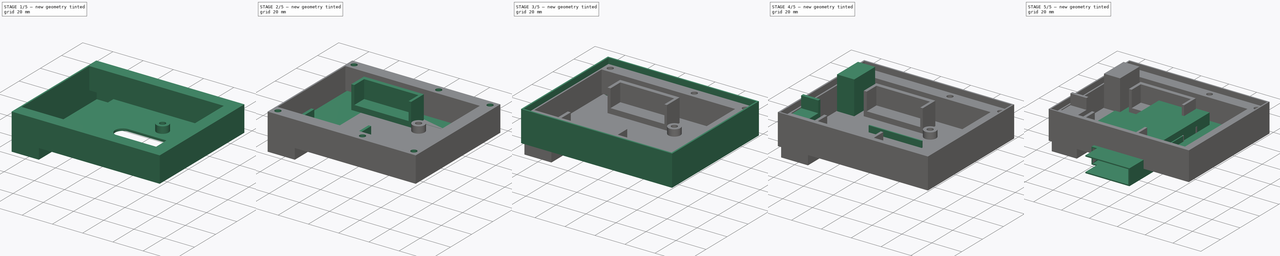
[diagram: build sequence overview — one tinted view per stage of 5, left to right]
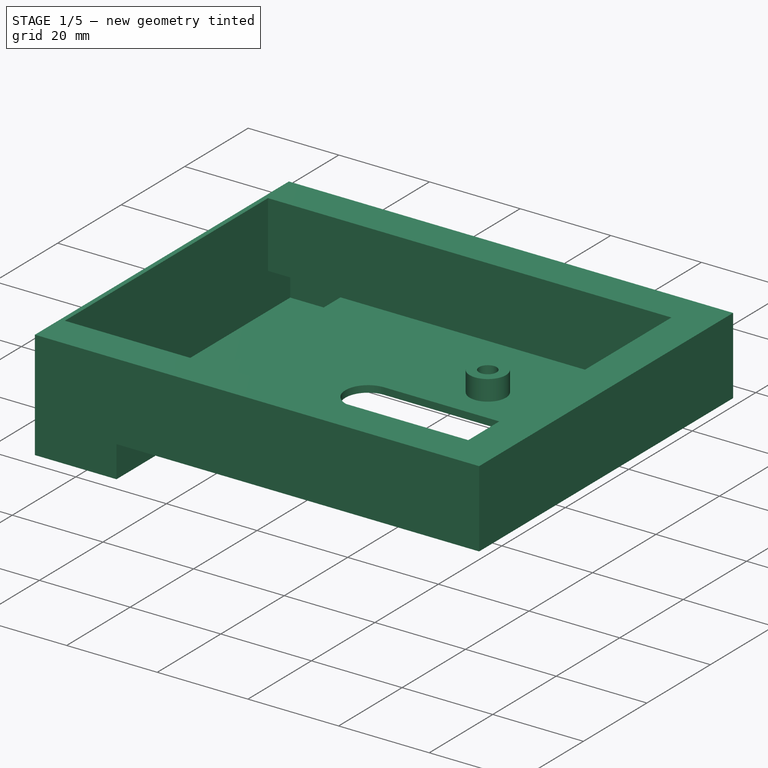
[diagram: stage 1 of 5 — iso view after this stage's code; geometry added in this stage tinted green]
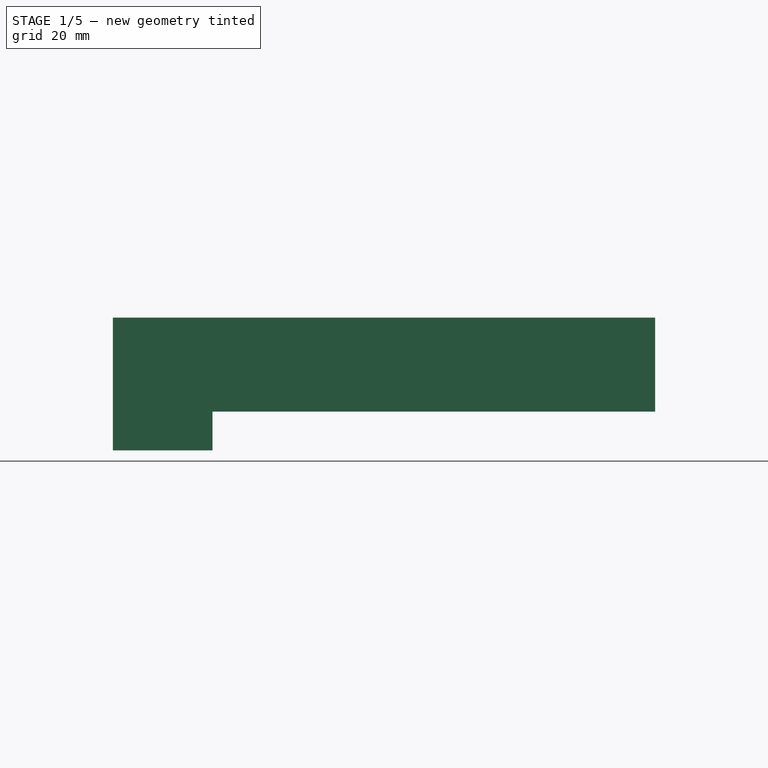
[diagram: stage 1 of 5 — front view after this stage's code; geometry added in this stage tinted green]
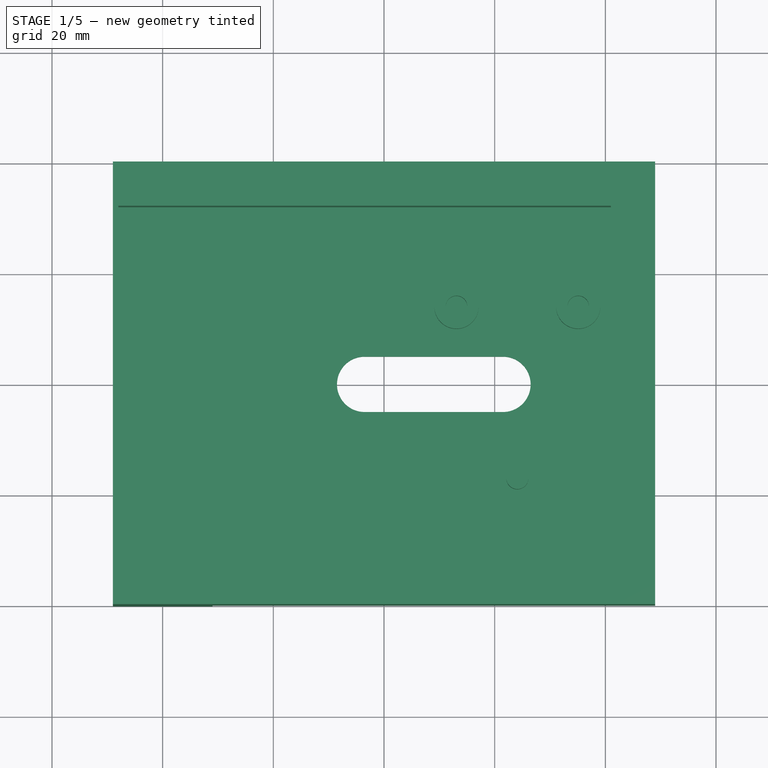
[diagram: stage 1 of 5 — top view after this stage's code; geometry added in this stage tinted green]
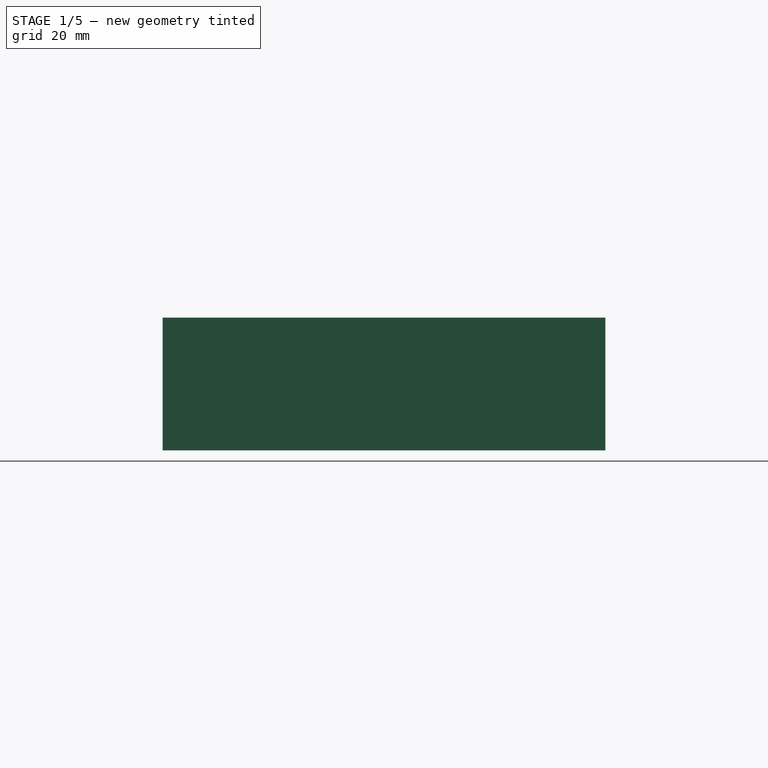
[diagram: stage 1 of 5 — right view after this stage's code; geometry added in this stage tinted green]
FCSTD DOCUMENT  (FreeCAD 1.0R39109 (Git))
Label: RAKTracker-v7
License: All rights reserved
LicenseURL: http://en.wikipedia.org/wiki/All_rights_reserved
objects: Part::Feature×99, App::Part×64, Sketcher::SketchObject×24, PartDesign::Pad×15, PartDesign::Pocket×8, PartDesign::Body×6, Spreadsheet::Sheet×1, PartDesign::Plane×1, App::DocumentObjectGroup×1, PartDesign::Hole×1
note: 226 computed .brp shape members not serialized (recipe doc carries the construction recipe); baked Part::Feature solids carry a one-line shape summary decoded from their .brp

FEATURE [Spreadsheet::Sheet] Spreadsheet  label="RAKSheet"
  cells = A1='Components; D1='Component helping measurements; G1='Other; J1='Holes; A3='Antenna Length; B3(AntLength)==40 mm; D3='Antenna Bump Width; E3(AntBumpWidth)==2 * E5 + B18; G3='Box Wall thickness; H3(BoxWallThickness)==8 mm; J3='M3 No Insert; K3==2.8 mm; A4='Antenne width; B4(AntWidth)==8 mm; D4='Antenna Bump Height; E4(AntBumpHeight)==7 mm; G4='Box Floor Height; H4(BoxFloorHeight)==1.5 mm; J4='M3 Insert inner dia; K4(screwM3InsertInnerDIa)==3.9 mm; A5='Antenna Height Wire; B5(AntHeightWire)==1.5 mm; D5='Antenna Bump Wall Thickness; E5(AntBumpWallThickness)==1 mm; G5='Box Height; H5(BoxHeight)==H4 + B23; J5='M2.5 Insert inner dia; K5==3.9 mm; A6='Antenna Height None Wire; B6(AntHeightNoneWire)==0.7 mm; G6='Box Internal Length; H6(BoxInternalLength)==H10 - H3 - E5; J6='M3 Insert outer dia; K6==8 mm; G7='Box Internal Width; H7(BoxInternalWidth)==H9 - H3 - H3; A8='Battery Length; B8(BatLength)==55 mm; D8='Battery 3rd Mount from wall; E8(BatMount3rdMountDist)==B8 + E11 / 2; J8='M3 Insert Depth; K8(screwM3InsertDepth)==8 mm; A9='Battery Width; B9(BatWidth)==34 mm; D9='Battery Mount Width; E9(BatMountWidth)==B9 + E11; G9='Box Width; H9(BoxWidth)==B14; J9='M3 Through Hole inner dia (screw just goes through); K9(screwM3ThoughHoleInnerDia)==3.5 mm; A10='Battery Height; B10(BatHeight)==10 mm; D10='Battery Mount Height; E10(BatMountHeight)==B10 + H4; G10='Box Length; H10(BoxLength)==E3 + B13; J10='M3 Though Hole outer dia; K10(screwM3ThoughHoleOuterDia)==6 mm; D11='Battery Mount Diameter (outer); E11(BatMountDiaOuter)==6 mm; D12='Battery Mount Dia (inner); E12(BatMountDiaInner)==K3; A13='Solar Panel Length; B13(SolarPanelLength)==80 mm; A14='Solar Panel Width; B14(SolarPanelWidth)==80 mm; A15='Solar Panel height; B15(SolarPanelHeight)==2 mm; G15='Lid Length; H15(LidLength)==H10 + 2 * (H17 + H18); G16='Lid Width; H16(LidWidth)==H9 + 2 * (H17 + H18); G17='Lid Overhang margin; H17(LidMargin)==0.3 mm; A18='GPS Length and Width; B18(GPSLength)==16 mm; G18='Lid overhang wall thickness; H18(LidOverhangWallThickness)==1 mm; A19='GPS Height; B19(GPSHeight)==8 mm; G19='Lid Height; H19(LidHeight)==1.6 mm; G20='Lid overhang height; H20(LidOverhangHeight)==7 mm; A21='PCB Length; B21==36 mm; D21='PCB Width Outer; E21(PCBWidthOuter)==34 mm; G21='Lid Antenna GPS Holder Offset; H21(LidAntGPSHolderOffsetHeight)==H19 + E4 + H5 - E5 - H17; I21='Lid height + ant bump + box height - ant bump wallthickness - margin; A22='PCB Width; B22==30.5 mm; D22='PCB Mount Hole Distance (length); E22(PCBMountHoleDistanceLength)==31 mm; G22='Lid Antenna GPS Offset; H22(LidAntGPSOffsetHeight)==H19 + E4 + H5 - E5 - B19; I22='Lid height + box height - ant bump wallthickness - GPS HEight; A23='PCB Height; B23==15.5 mm; D23='PCB Mount Height; E23(PCBMountHeight)==4.5 mm; G23='Lid Antenna Offset width; H23(LidAntOffsetWidth)==B18 - 4.5 mm; D24='PCB Mount From Side; E24(PCBMountFromSide)==5.5 mm; G24='Lid Antenna LORA offset; H24(LidAntLoraOffSet)==H19 + E4 + H5 - E5 - B6; I24='Lid Height + Ant Bump + Box Height - Ant Bump wallthickness - Ant Height (none-wire); D25='PCB Mount Dia Inner; E25(PCBMountDiaInner)==K4; D26='PCB Mount Dia Outer; E26(PCBMountDiaOuter)==K6; D27='PCB Mount Hole Distance (side); E27(PCBMountHoleDistance)==22 mm; D28='PCB Mount From Wall (USB); E28(PCBMountFromWallUSB)==18 mm; G28='Strap Hole Distance; H28(StrapHoleDistance)==K10 + H29; G29='Strap Width; H29(StrapWidth)==50 mm; G31='Battery Box Length; H31(BatBoxLength)==B8 + H36; I31='Battery Length + Wall; G32='Battery Box Width; H32(BatBoxWidth)==B9 + 2 * H36; G33='Battery Box Height; H33(BatBoxHeight)==B10 + 2 * H36; G35='Battery Box Wire Gap Length; H35(BatBoxWireGapLength)==12 mm; G36='Battery Box Wall Thickness; H36(BatBoxWallThickness)==0.8 mm; G37='Battery Box Wire Gap Width; H37(BatBoxWireGapWidth)==4 mm; G38='Battery Box Margin; H38(BatBoxMargin)==0.3 mm; G40='Battery Box Holder Wall thickness; H40(BatBoxHolderWallThickness)==2 mm
FEATURE [Sketcher::SketchObject] Sketch  label="Box-BaseSketch"
  ArcFitTolerance = 0
  AttachmentSupport = -> [XZ_Plane]
  FullyConstrained = true
  MakeInternals = false
  MapMode = 5
  Placement = pos=(0,0,0) rot=(1,0,0;1.5708rad)
  expr: Constraints[13] = <<RAKSheet>>.AntBumpWidth
  expr: Constraints[14] = <<RAKSheet>>.SolarPanelLength
  expr: Constraints[15] = <<RAKSheet>>.AntBumpHeight
  expr: Constraints[16] = <<RAKSheet>>.BoxHeight
  sketch-geometry (6):
    g0: LineSegment StartX=-49 StartY=17 StartZ=0 EndX=-49 EndY=-7 EndZ=0
    g1: LineSegment StartX=-49 StartY=-7 StartZ=0 EndX=-31 EndY=-7 EndZ=0
    g2: LineSegment StartX=-31 StartY=-7 StartZ=0 EndX=-31 EndY=0 EndZ=0
    g3: LineSegment StartX=-31 StartY=0 StartZ=0 EndX=49 EndY=0 EndZ=0
    g4: LineSegment StartX=49 StartY=0 StartZ=0 EndX=49 EndY=17 EndZ=0
    g5: LineSegment StartX=49 StartY=17 StartZ=0 EndX=-49 EndY=17 EndZ=0
  constraints (17):
    c: Vertical(g0)
    c: Horizontal(g1)
    c: PointOnObject(g2,g-1)
    c: Vertical(g2)
    c: Coincident(g3,g2)
    c: PointOnObject(g3,g-1)
    c: Vertical(g4)
    c: Coincident(g5,g0)
    c: Coincident(g2,g1)
    c: Coincident(g0,g1)
    c: Coincident(g5,g4)
    c: Coincident(g4,g3)
    c: Symmetric(g4,g0,g-2)
    c: DistanceX(g1,g1) = 18
    c: DistanceX(g2,g3) = 80
    c: DistanceY(g1,g2) = 7
    c: DistanceY(g3,g4) = 17
FEATURE [PartDesign::Pad] Pad  label="Box-Base"
  Direction = (0,-1,2e-16)
  Length = 80
  Length2 = 10
  Midplane = true
  Placement = pos=(0,0,0) rot=(1,0,0;1.5708rad)
  Profile = -> Sketch
  ReferenceAxis = -> Sketch [N_Axis]
  Suppressed = false
  Type = 0
  expr: Length = <<RAKSheet>>.BoxWidth
FEATURE [Sketcher::SketchObject] Sketch001  label="Box-InternalSpaceSketch"
  ArcFitTolerance = 0
  AttachmentSupport = -> [XZ_Plane]
  FullyConstrained = true
  MakeInternals = false
  MapMode = 5
  Placement = pos=(0,0,0) rot=(1,0,0;1.5708rad)
  expr: Constraints[11] = <<RAKSheet>>.BoxFloorHeight
  expr: Constraints[12] = <<RAKSheet>>.GPSLength
  expr: Constraints[13] = <<RAKSheet>>.AntBumpHeight
  expr: Constraints[14] = <<RAKSheet>>.BoxHeight
  expr: Constraints[15] = <<RAKSheet>>.BoxInternalLength
  expr: Constraints[16] = <<RAKSheet>>.BoxLength / 2 - <<RAKSheet>>.BoxWallThickness
  sketch-geometry (6):
    g0: LineSegment StartX=-32 StartY=1.5 StartZ=0 EndX=41 EndY=1.5 EndZ=0
    g1: LineSegment StartX=41 StartY=1.5 StartZ=0 EndX=41 EndY=18.5 EndZ=0
    g2: LineSegment StartX=41 StartY=18.5 StartZ=0 EndX=-48 EndY=18.5 EndZ=0
    g3: LineSegment StartX=-48 StartY=18.5 StartZ=0 EndX=-48 EndY=-5.5 EndZ=0
    g4: LineSegment StartX=-48 StartY=-5.5 StartZ=0 EndX=-32 EndY=-5.5 EndZ=0
    g5: LineSegment StartX=-32 StartY=-5.5 StartZ=0 EndX=-32 EndY=1.5 EndZ=0
  constraints (18):
    c: Horizontal(g0)
    c: Vertical(g1)
    c: Coincident(g2,g1)
    c: Vertical(g3)
    c: Coincident(g4,g3)
    c: Horizontal(g4)
    c: Coincident(g5,g4)
    c: Coincident(g5,g0)
    c: Vertical(g5)
    c: Coincident(g2,g3)
    c: Coincident(g1,g0)
    c: DistanceY(g-1,g0) = 1.5
    c: DistanceX(g3,g4) = 16
    c: DistanceY(g4,g0) = 7
    c: DistanceY(g0,g1) = 17
    c: DistanceX(g2,g1) = 89
    c: DistanceX(g-1,g0) = 41
    c: Horizontal(g2)
FEATURE [PartDesign::Pocket] Pocket  label="Box-InternalSpace"
  BaseFeature = -> Pad
  Direction = (0,1,-2e-16)
  Length = 64
  Length2 = 5
  Midplane = true
  Placement = pos=(0,0,0) rot=(1,0,0;1.5708rad)
  Profile = -> Sketch001
  ReferenceAxis = -> Sketch001 [N_Axis]
  Suppressed = false
  Type = 0
  expr: Length = <<RAKSheet>>.BoxInternalWidth
FEATURE [PartDesign::Body] Body001  label="Comp-SolarPanel"
  AllowCompound = false
  Group = -> [Sketch002,Pad001,Sketch003,Pad002]
  Origin = -> Origin001
  Tip = -> Pad002
FEATURE [Sketcher::SketchObject] Sketch004  label="Box-SolarPanelGapSketch"
  ArcFitTolerance = 0
  AttachmentSupport = -> [XY_Plane]
  FullyConstrained = true
  MakeInternals = false
  MapMode = 5
  expr: Constraints[17] = <<RAKSheet>>.BoxLength
  expr: Constraints[18] = <<RAKSheet>>.BoxWidth
  expr: Constraints[20] = <<RAKSheet>>.SolarPanelLength / 2 - 12.5 mm
  sketch-geometry (8):
    g0: ArcOfCircle CenterX=-3.5 CenterY=0 CenterZ=0 NormalX=0 NormalY=0 NormalZ=1 AngleXU=0 Radius=5 StartAngle=1.5708 EndAngle=4.71239
    g1: ArcOfCircle CenterX=21.5 CenterY=0 CenterZ=0 NormalX=0 NormalY=0 NormalZ=1 AngleXU=0 Radius=5 StartAngle=4.71239 EndAngle=7.85398
    g2: LineSegment StartX=-3.5 StartY=-5 StartZ=0 EndX=21.5 EndY=-5 EndZ=0
    g3: LineSegment StartX=21.5 StartY=5 StartZ=0 EndX=-3.5 EndY=5 EndZ=0
    g4: LineSegment [constr] StartX=-49 StartY=40 StartZ=0 EndX=-49 EndY=-40 EndZ=0
    g5: LineSegment [constr] StartX=-49 StartY=-40 StartZ=0 EndX=49 EndY=-40 EndZ=0
    g6: LineSegment [constr] StartX=49 StartY=-40 StartZ=0 EndX=49 EndY=40 EndZ=0
    g7: LineSegment [constr] StartX=49 StartY=40 StartZ=0 EndX=-49 EndY=40 EndZ=0
  constraints (21):
    c: Tangent(g0,g2) = -1.5708
    c: Tangent(g2,g1) = -1.5708
    c: Tangent(g1,g3) = -1.5708
    c: Tangent(g3,g0) = -1.5708
    c: Equal(g0,g1)
    c: PointOnObject(g0,g-1)
    c: PointOnObject(g1,g-1)
    c: DistanceX(g0,g1) = 25
    c: DistanceY(g1,g1) = 10
    c: Coincident(g4,g5)
    c: Coincident(g5,g6)
    c: Coincident(g6,g7)
    c: Coincident(g7,g4)
    c: Horizontal(g5)
    c: Horizontal(g7)
    c: Vertical(g4)
    c: Vertical(g6)
    c: DistanceX(g7,g7) = 98
    c: DistanceY(g6,g6) = 80
    c: Symmetric(g4,g5,g-1)
    c: DistanceX(g1,g6) = 27.5
FEATURE [PartDesign::Pocket] Pocket001  label="Box-SolarPanelGap"
  BaseFeature = -> Pocket
  Direction = (0,0,-1)
  Length = 1.5
  Length2 = 5
  Placement = pos=(0,0,0) rot=(1,0,0;1.5708rad)
  Profile = -> Sketch004
  ReferenceAxis = -> Sketch004 [N_Axis]
  Reversed = true
  Suppressed = false
  Type = 0
  expr: Length = <<RAKSheet>>.BoxFloorHeight
FEATURE [PartDesign::Body] Body002  label="Comp-Battery"
  AllowCompound = false
  Group = -> [Sketch006,Pad004]
  Origin = -> Origin002
  Placement = pos=(-18.7,4.6,1) rot=(0,0,1;0rad)
  Tip = -> Pad004
FEATURE [Sketcher::SketchObject] Sketch007  label="Box-PCBMountSketch"
  ArcFitTolerance = 0
  AttachmentSupport = -> [XY_Plane]
  FullyConstrained = true
  MakeInternals = false
  MapMode = 5
  expr: Constraints[10] = <<RAKSheet>>.BoxLength / 2 - <<RAKSheet>>.BoxWallThickness
  expr: Constraints[12] = <<RAKSheet>>.BoxInternalLength
  expr: Constraints[13] = <<RAKSheet>>.BoxInternalWidth
  expr: Constraints[17] = <<RAKSheet>>.PCBMountDiaInner
  expr: Constraints[19] = <<RAKSheet>>.PCBMountHoleDistance
  expr: Constraints[1] = <<RAKSheet>>.PCBMountDiaOuter
  expr: Constraints[20] = <<RAKSheet>>.PCBMountHoleDistance / 2
  expr: Constraints[21] = <<RAKSheet>>.BatBoxWidth + 2 * <<RAKSheet>>.BatBoxHolderWallThickness + <<RAKSheet>>.GPSLength + <<RAKSheet>>.PCBMountFromSide
  expr: Constraints[22] = <<RAKSheet>>.PCBMountFromWallUSB
  expr: Constraints[23] = <<RAKSheet>>.PCBMountHoleDistanceLength
  expr: Constraints[2] = <<RAKSheet>>.PCBMountDiaOuter / 2
  sketch-geometry (9):
    g0: Circle CenterX=13.1 CenterY=14 CenterZ=0 NormalX=0 NormalY=0 NormalZ=1 AngleXU=0 Radius=4
    g1: Circle CenterX=35.1 CenterY=14 CenterZ=0 NormalX=0 NormalY=0 NormalZ=1 AngleXU=0 Radius=4
    g2: Circle CenterX=24.1 CenterY=-17 CenterZ=0 NormalX=0 NormalY=0 NormalZ=1 AngleXU=0 Radius=2
    g3: LineSegment [constr] StartX=-48 StartY=32 StartZ=0 EndX=41 EndY=32 EndZ=0
    g4: LineSegment [constr] StartX=41 StartY=32 StartZ=0 EndX=41 EndY=-32 EndZ=0
    g5: LineSegment [constr] StartX=41 StartY=-32 StartZ=0 EndX=-48 EndY=-32 EndZ=0
    g6: LineSegment [constr] StartX=-48 StartY=-32 StartZ=0 EndX=-48 EndY=32 EndZ=0
    g7: Circle CenterX=13.1 CenterY=14 CenterZ=0 NormalX=0 NormalY=0 NormalZ=1 AngleXU=0 Radius=1.95
    g8: Circle CenterX=35.1 CenterY=14 CenterZ=0 NormalX=0 NormalY=0 NormalZ=1 AngleXU=0 Radius=1.95
  constraints (24):
    c: Equal(g0,g1)
    c: Diameter(g0) = 8
    c: Diameter(g2) = 4
    c: Coincident(g3,g4)
    c: Coincident(g4,g5)
    c: Coincident(g5,g6)
    c: Coincident(g6,g3)
    c: Horizontal(g3)
    c: Horizontal(g5)
    c: Vertical(g6)
    c: DistanceX(g-1,g4) = 41
    c: Symmetric(g3,g4,g-1)
    c: DistanceX(g3,g3) = 89
    c: DistanceY(g4,g3) = 64
    c: Coincident(g7,g0)
    c: Coincident(g8,g1)
    c: Equal(g7,g8)
    c: Diameter(g7) = 3.9
    c: Horizontal(g1,g0)
    c: DistanceX(g0,g1) = 22
    c: DistanceX(g2,g1) = 11
    c: DistanceX(g3,g0) = 61.1
    c: DistanceY(g0,g3) = 18
    c: DistanceY(g2,g1) = 31
FEATURE [PartDesign::Pad] Pad005  label="Box-PCBMount"
  BaseFeature = -> Pocket001
  Direction = (0,0,1)
  Length = 6
  Length2 = 10
  Placement = pos=(0,0,0) rot=(1,0,0;1.5708rad)
  Profile = -> Sketch007
  ReferenceAxis = -> Sketch007 [N_Axis]
  Suppressed = false
  Type = 0
  expr: Length = <<RAKSheet>>.PCBMountHeight + <<RAKSheet>>.BoxFloorHeight
FEATURE [Sketcher::SketchObject] Sketch008  label="Box-AntGapSketch"
  ArcFitTolerance = 0
  AttachmentSupport = -> [XZ_Plane]
  ExternalGeometry = -> [Sketch001]
  FullyConstrained = true
  MakeInternals = false
  MapMode = 5
  Placement = pos=(0,0,0) rot=(1,0,0;1.5708rad)
  expr: Constraints[10] = <<RAKSheet>>.GPSHeight
  sketch-geometry (4):
    g0: LineSegment StartX=-48 StartY=-5.5 StartZ=0 EndX=-32 EndY=-5.5 EndZ=0
    g1: LineSegment StartX=-32 StartY=-5.5 StartZ=0 EndX=-32 EndY=2.5 EndZ=0
    g2: LineSegment StartX=-32 StartY=2.5 StartZ=0 EndX=-48 EndY=2.5 EndZ=0
    g3: LineSegment StartX=-48 StartY=2.5 StartZ=0 EndX=-48 EndY=-5.5 EndZ=0
  constraints (11):
    c: Coincident(g0,g1)
    c: Coincident(g1,g2)
    c: Coincident(g2,g3)
    c: Coincident(g3,g0)
    c: Horizontal(g0)
    c: Horizontal(g2)
    c: Vertical(g1)
    c: Vertical(g3)
    c: Coincident(g0,g-5)
    c: Vertical(g1,g-4)
    c: DistanceY(g0,g2) = 8
FEATURE [PartDesign::Pocket] Pocket002  label="Box-AntGap"
  BaseFeature = -> Pad005
  Direction = (0,1,-2e-16)
  Length = 78
  Length2 = 5
  Midplane = true
  Placement = pos=(0,0,0) rot=(1,0,0;1.5708rad)
  Profile = -> Sketch008
  ReferenceAxis = -> Sketch008 [N_Axis]
  Suppressed = false
  Type = 0
  expr: Length = <<RAKSheet>>.BoxWidth - 2 * <<RAKSheet>>.AntBumpWallThickness
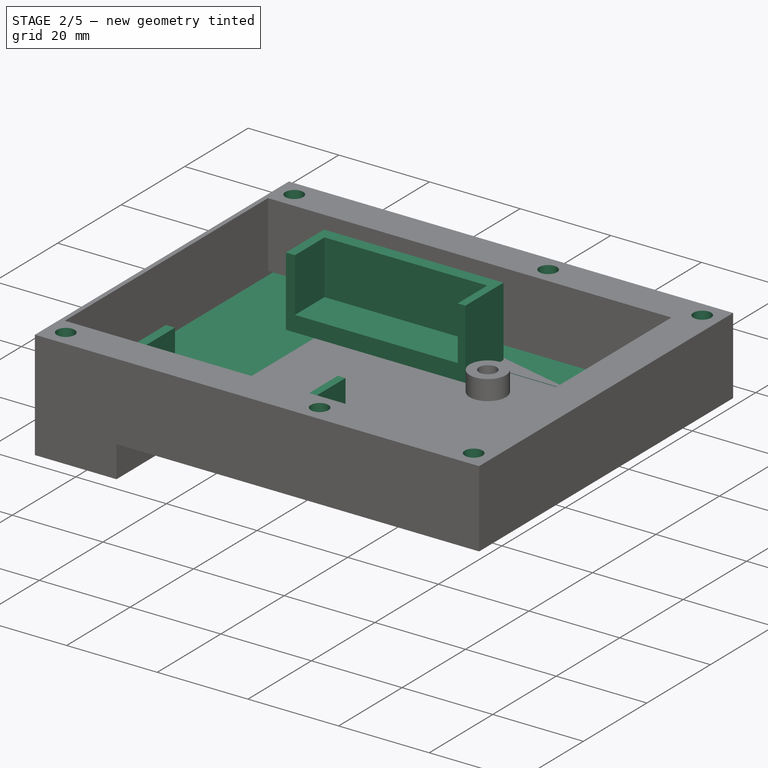
[diagram: stage 2 of 5 — iso view after this stage's code; geometry added in this stage tinted green]
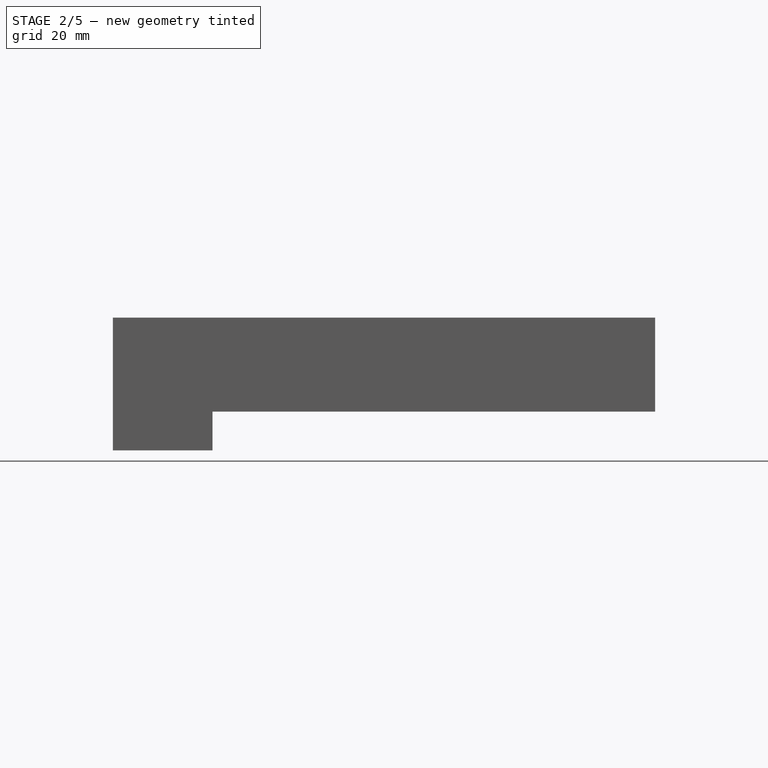
[diagram: stage 2 of 5 — front view after this stage's code; geometry added in this stage tinted green]
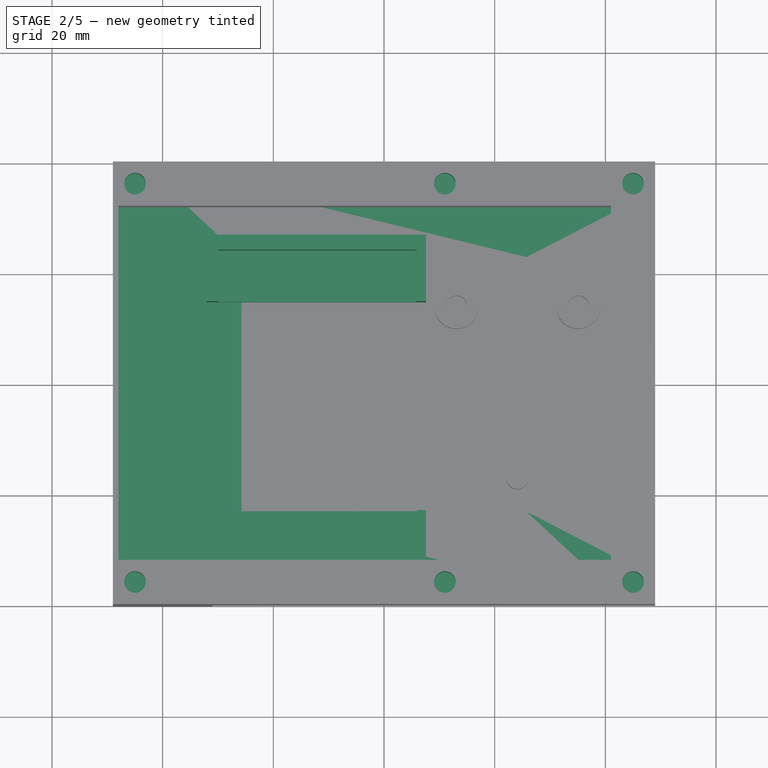
[diagram: stage 2 of 5 — top view after this stage's code; geometry added in this stage tinted green]
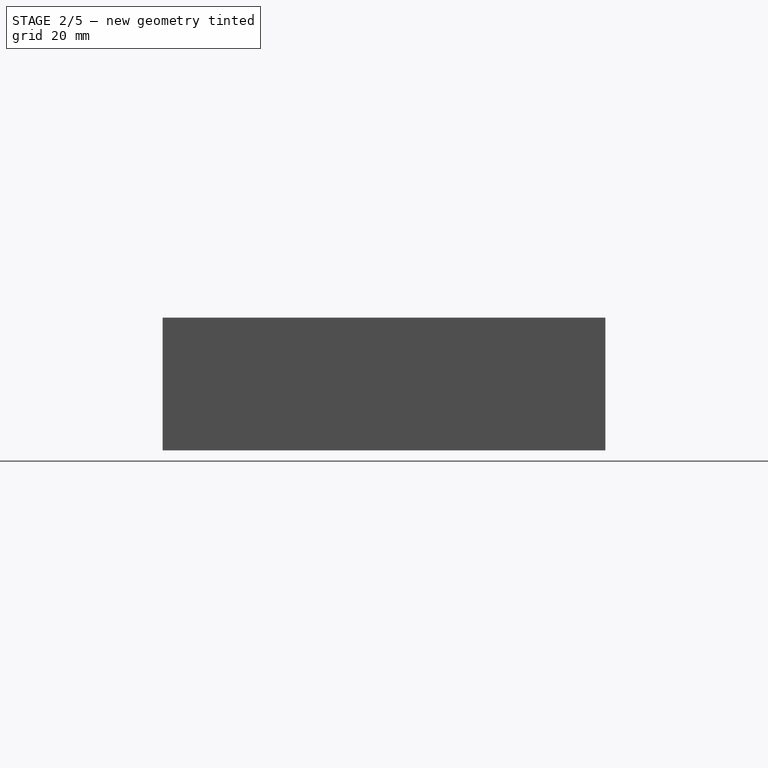
[diagram: stage 2 of 5 — right view after this stage's code; geometry added in this stage tinted green]
FEATURE [PartDesign::Plane] DatumPlane  label="Box-TopOfBox"
  Length = 115.709
  MapMode = 2
  Placement = pos=(0,0,17) rot=(0,0,1;0rad)
  ResizeMode = 0
  Width = 97.7088
  expr: .Placement.Base.z = <<RAKSheet>>.BoxHeight
FEATURE [Sketcher::SketchObject] Sketch013  label="Box-TopScrewHolesSketch"
  ArcFitTolerance = 0
  AttachmentSupport = -> [DatumPlane]
  FullyConstrained = true
  MakeInternals = false
  MapMode = 5
  Placement = pos=(0,0,17) rot=(0,0,1;0rad)
  expr: Constraints[23] = <<RAKSheet>>.screwM3InsertInnerDIa
  expr: Constraints[24] = <<RAKSheet>>.BoxWallThickness / 2
  expr: Constraints[25] = <<RAKSheet>>.BoxWallThickness / 2
  expr: Constraints[26] = <<RAKSheet>>.StrapHoleDistance
  expr: Constraints[27] = <<RAKSheet>>.BoxWallThickness / 2
  expr: Constraints[28] = <<RAKSheet>>.BoxWallThickness / 2
  expr: Constraints[8] = <<RAKSheet>>.BoxWidth
  expr: Constraints[9] = <<RAKSheet>>.BoxLength
  sketch-geometry (10):
    g0: LineSegment [constr] StartX=-49 StartY=40 StartZ=0 EndX=49 EndY=40 EndZ=0
    g1: LineSegment [constr] StartX=49 StartY=40 StartZ=0 EndX=49 EndY=-40 EndZ=0
    g2: LineSegment [constr] StartX=49 StartY=-40 StartZ=0 EndX=-49 EndY=-40 EndZ=0
    g3: LineSegment [constr] StartX=-49 StartY=-40 StartZ=0 EndX=-49 EndY=40 EndZ=0
    g4: Circle CenterX=-45 CenterY=36 CenterZ=0 NormalX=0 NormalY=0 NormalZ=1 AngleXU=0 Radius=1.95
    g5: Circle CenterX=11 CenterY=36 CenterZ=0 NormalX=0 NormalY=0 NormalZ=1 AngleXU=0 Radius=1.95
    g6: Circle CenterX=45 CenterY=36 CenterZ=0 NormalX=0 NormalY=0 NormalZ=1 AngleXU=0 Radius=1.95
    g7: Circle CenterX=45 CenterY=-36 CenterZ=0 NormalX=0 NormalY=0 NormalZ=1 AngleXU=0 Radius=1.95
    g8: Circle CenterX=11 CenterY=-36 CenterZ=0 NormalX=0 NormalY=0 NormalZ=1 AngleXU=0 Radius=1.95
    g9: Circle CenterX=-45 CenterY=-36 CenterZ=0 NormalX=0 NormalY=0 NormalZ=1 AngleXU=0 Radius=1.95
  constraints (25):
    c: Coincident(g0,g1)
    c: Coincident(g1,g2)
    c: Coincident(g2,g3)
    c: Coincident(g3,g0)
    c: Horizontal(g0)
    c: Horizontal(g2)
    c: Vertical(g1)
    c: Vertical(g3)
    c: DistanceY(g1,g1) = 80
    c: DistanceX(g0,g0) = 98
    c: Symmetric(g0,g2,g-1)
    c: Vertical(g4,g9)
    c: Vertical(g5,g8)
    c: Vertical(g6,g7)
    c: Horizontal(g4,g5)
    c: Horizontal(g5,g6)
    c: Horizontal(g9,g8)
    c: Horizontal(g8,g7)
    c: Equal(g4, g5-g9) x5
    c: Diameter(g4) = 3.9
    c: DistanceX(g0,g4) = 4
    c: DistanceY(g4,g0) = 4
    c: DistanceX(g4,g5) = 56
    c: DistanceX(g6,g0) = 4
    c: DistanceY(g2,g9) = 4
FEATURE [PartDesign::Pocket] Pocket003  label="Box-TopScrewHoles"
  BaseFeature = -> Pocket002
  Direction = (0,0,-1)
  Length = 8
  Length2 = 5
  Placement = pos=(0,0,0) rot=(1,0,0;1.5708rad)
  Profile = -> Sketch013
  ReferenceAxis = -> Sketch013 [N_Axis]
  Suppressed = false
  Type = 0
  expr: Length = <<RAKSheet>>.screwM3InsertDepth
FEATURE [PartDesign::Body] Body004  label="BatteryBox"
  AllowCompound = false
  Group = -> [Sketch015,Pad010,Sketch016,Pad011,Sketch017,Pocket005]
  Origin = -> Origin068
  Placement = pos=(-21,23.8,107) rot=(0,1,0;3.14159rad)
  Tip = -> Pocket005
FEATURE [Sketcher::SketchObject] Sketch018  label="Box-BatHolderBaseSketch"
  ArcFitTolerance = 0
  AttachmentSupport = -> [XY_Plane]
  FullyConstrained = true
  MakeInternals = false
  MapMode = 5
  expr: Constraints[23] = <<RAKSheet>>.BoxLength / 2 - <<RAKSheet>>.BoxWallThickness
  expr: Constraints[24] = <<RAKSheet>>.BoxInternalLength
  expr: Constraints[25] = <<RAKSheet>>.BoxInternalWidth
  expr: Constraints[29] = <<RAKSheet>>.BatBoxWidth + 2 * <<RAKSheet>>.BatBoxHolderWallThickness
  expr: Constraints[30] = <<RAKSheet>>.BatBoxWireGapLength - 3 mm
  expr: Constraints[31] = <<RAKSheet>>.BatBoxWireGapLength
  expr: Constraints[32] = <<RAKSheet>>.BatBoxLength + 3 mm
  expr: Constraints[34] = <<RAKSheet>>.GPSLength
  sketch-geometry (12):
    g0: LineSegment StartX=-32 StartY=26.8 StartZ=0 EndX=7.6 EndY=26.8 EndZ=0
    g1: LineSegment StartX=7.6 StartY=26.8 StartZ=0 EndX=7.6 EndY=14.8 EndZ=0
    g2: LineSegment StartX=7.6 StartY=14.8 StartZ=0 EndX=-32 EndY=14.8 EndZ=0
    g3: LineSegment StartX=-32 StartY=14.8 StartZ=0 EndX=-32 EndY=26.8 EndZ=0
    g4: LineSegment StartX=-32 StartY=-23 StartZ=0 EndX=7.6 EndY=-23 EndZ=0
    g5: LineSegment StartX=7.6 StartY=-23 StartZ=0 EndX=7.6 EndY=-32 EndZ=0
    g6: LineSegment StartX=7.6 StartY=-32 StartZ=0 EndX=-32 EndY=-32 EndZ=0
    g7: LineSegment StartX=-32 StartY=-32 StartZ=0 EndX=-32 EndY=-23 EndZ=0
    g8: LineSegment [constr] StartX=41 StartY=-32 StartZ=0 EndX=-48 EndY=-32 EndZ=0
    g9: LineSegment [constr] StartX=-48 StartY=-32 StartZ=0 EndX=-48 EndY=32 EndZ=0
    g10: LineSegment [constr] StartX=-48 StartY=32 StartZ=0 EndX=41 EndY=32 EndZ=0
    g11: LineSegment [constr] StartX=41 StartY=32 StartZ=0 EndX=41 EndY=-32 EndZ=0
  constraints (35):
    c: Coincident(g0,g1)
    c: Coincident(g1,g2)
    c: Coincident(g2,g3)
    c: Coincident(g3,g0)
    c: Horizontal(g0)
    c: Horizontal(g2)
    c: Vertical(g1)
    c: Vertical(g3)
    c: Coincident(g4,g5)
    c: Coincident(g5,g6)
    c: Coincident(g6,g7)
    c: Coincident(g7,g4)
    c: Horizontal(g4)
    c: Horizontal(g6)
    c: Vertical(g5)
    c: Vertical(g7)
    c: Coincident(g8,g9)
    c: Coincident(g9,g10)
    c: Coincident(g10,g11)
    c: Coincident(g11,g8)
    c: Horizontal(g8)
    c: Horizontal(g10)
    c: Vertical(g9)
    c: DistanceX(g-1,g8) = 41
    c: DistanceX(g10,g10) = 89
    c: DistanceY(g11,g11) = 64
    c: Symmetric(g10,g8,g-1)
    c: Vertical(g4,g2)
    c: Vertical(g1,g4)
    c: DistanceX(g6,g5) = 39.6
    c: DistanceY(g7,g7) = 9
    c: DistanceY(g3,g3) = 12
    c: DistanceY(g5,g0) = 58.8
    c: PointOnObject(g6,g8)
    c: DistanceX(g8,g6) = 16
FEATURE [PartDesign::Pad] Pad012  label="Box-BatHolderBase"
  BaseFeature = -> Pocket003
  Direction = (0,0,1)
  Length = 17
  Length2 = 10
  Placement = pos=(0,0,0) rot=(1,0,0;1.5708rad)
  Profile = -> Sketch018
  ReferenceAxis = -> Sketch018 [N_Axis]
  Suppressed = false
  Type = 0
  expr: Length = <<RAKSheet>>.BoxHeight
FEATURE [Sketcher::SketchObject] Sketch019  label="Box-BatHolderGapSketch"
  ArcFitTolerance = 0
  AttachmentSupport = -> [DatumPlane]
  FullyConstrained = true
  MakeInternals = false
  MapMode = 5
  Placement = pos=(0,0,17) rot=(0,0,1;0rad)
  expr: Constraints[17] = <<RAKSheet>>.BoxInternalLength
  expr: Constraints[18] = <<RAKSheet>>.BoxInternalWidth
  expr: Constraints[21] = <<RAKSheet>>.BoxLength / 2 - <<RAKSheet>>.BoxWallThickness
  expr: Constraints[22] = <<RAKSheet>>.GPSLength + <<RAKSheet>>.BatBoxHolderWallThickness
  expr: Constraints[8] = <<RAKSheet>>.BatBoxWidth + <<RAKSheet>>.BatBoxMargin
  expr: Constraints[9] = <<RAKSheet>>.BatBoxLength + <<RAKSheet>>.BatBoxMargin
  sketch-geometry (8):
    g0: LineSegment StartX=-30 StartY=24.1 StartZ=0 EndX=5.9 EndY=24.1 EndZ=0
    g1: LineSegment StartX=5.9 StartY=24.1 StartZ=0 EndX=5.9 EndY=-32 EndZ=0
    g2: LineSegment StartX=5.9 StartY=-32 StartZ=0 EndX=-30 EndY=-32 EndZ=0
    g3: LineSegment StartX=-30 StartY=-32 StartZ=0 EndX=-30 EndY=24.1 EndZ=0
    g4: LineSegment [constr] StartX=-48 StartY=32 StartZ=0 EndX=41 EndY=32 EndZ=0
    g5: LineSegment [constr] StartX=41 StartY=32 StartZ=0 EndX=41 EndY=-32 EndZ=0
    g6: LineSegment [constr] StartX=41 StartY=-32 StartZ=0 EndX=-48 EndY=-32 EndZ=0
    g7: LineSegment [constr] StartX=-48 StartY=-32 StartZ=0 EndX=-48 EndY=32 EndZ=0
  constraints (23):
    c: Coincident(g0,g1)
    c: Coincident(g1,g2)
    c: Coincident(g2,g3)
    c: Coincident(g3,g0)
    c: Horizontal(g0)
    c: Horizontal(g2)
    c: Vertical(g1)
    c: Vertical(g3)
    c: DistanceX(g0,g0) = 35.9
    c: DistanceY(g1,g1) = 56.1
    c: Coincident(g4,g5)
    c: Coincident(g5,g6)
    c: Coincident(g6,g7)
    c: Coincident(g7,g4)
    c: Horizontal(g4)
    c: Horizontal(g6)
    c: Vertical(g7)
    c: DistanceX(g4,g4) = 89
    c: DistanceY(g5,g5) = 64
    c: Symmetric(g4,g5,g-1)
    c: PointOnObject(g1,g6)
    c: DistanceX(g-1,g5) = 41
    c: DistanceX(g6,g2) = 18
FEATURE [PartDesign::Pocket] Pocket006  label="Box-BatHolderGap"
  BaseFeature = -> Pad012
  Direction = (0,0,-1)
  Length = 11.9
  Length2 = 5
  Placement = pos=(0,0,0) rot=(1,0,0;1.5708rad)
  Profile = -> Sketch019
  ReferenceAxis = -> Sketch019 [N_Axis]
  Suppressed = false
  Type = 0
  expr: Length = <<RAKSheet>>.BatBoxHeight + <<RAKSheet>>.BatBoxMargin
FEATURE [PartDesign::Body] Body003  label="Lid"
  AllowCompound = false
  Group = -> [Sketch009,Pad006,Sketch010,Pad007,Sketch011,Pad008,Sketch012,Pad009,Sketch014,Pocket004,Sketch020,Pad013]
  Origin = -> Origin003
  Placement = pos=(0,1.4e-14,57.9) rot=(1,0,0;3.14159rad)
  Tip = -> Pad013
FEATURE [Sketcher::SketchObject] Sketch021  label="Strap-BaseSketch"
  ArcFitTolerance = 0
  AttachmentSupport = -> [XY_Plane069]
  FullyConstrained = true
  MakeInternals = false
  MapMode = 5
  expr: Constraints[20] = <<RAKSheet>>.BoxLength
  expr: Constraints[21] = <<RAKSheet>>.BoxWidth
  expr: Constraints[40] = <<RAKSheet>>.StrapWidth * 1.03
  expr: Constraints[43] = <<RAKSheet>>.BoxWidth / 2
  sketch-geometry (18):
    g0: ArcOfCircle CenterX=-44 CenterY=35 CenterZ=0 NormalX=0 NormalY=0 NormalZ=1 AngleXU=0 Radius=5 StartAngle=1.5708 EndAngle=3.14159
    g1: LineSegment StartX=-44 StartY=40 StartZ=0 EndX=44 EndY=40 EndZ=0
    g2: ArcOfCircle CenterX=44 CenterY=35 CenterZ=0 NormalX=0 NormalY=0 NormalZ=1 AngleXU=0 Radius=5 StartAngle=0 EndAngle=1.5708
    g3: LineSegment StartX=49 StartY=35 StartZ=0 EndX=49 EndY=-35 EndZ=0
    g4: ArcOfCircle CenterX=44 CenterY=-35 CenterZ=0 NormalX=0 NormalY=0 NormalZ=1 AngleXU=0 Radius=5 StartAngle=4.71239 EndAngle=6.28319
    g5: LineSegment StartX=44 StartY=-40 StartZ=0 EndX=-44 EndY=-40 EndZ=0
    g6: ArcOfCircle CenterX=-44 CenterY=-35 CenterZ=0 NormalX=0 NormalY=0 NormalZ=1 AngleXU=0 Radius=5 StartAngle=3.14159 EndAngle=4.71239
    g7: LineSegment StartX=-49 StartY=-35 StartZ=0 EndX=-49 EndY=35 EndZ=0
    g8: GeomPoint [constr] X=-49 Y=40 Z=0
    g9: GeomPoint [constr] X=49 Y=-40 Z=0
    g10: LineSegment StartX=-25.75 StartY=23 StartZ=0 EndX=25.75 EndY=23 EndZ=0
    g11: LineSegment StartX=25.75 StartY=23 StartZ=0 EndX=25.75 EndY=20 EndZ=0
    g12: LineSegment StartX=25.75 StartY=20 StartZ=0 EndX=-25.75 EndY=20 EndZ=0
    g13: LineSegment StartX=-25.75 StartY=20 StartZ=0 EndX=-25.75 EndY=23 EndZ=0
    g14: LineSegment StartX=-25.75 StartY=-20 StartZ=0 EndX=25.75 EndY=-20 EndZ=0
    g15: LineSegment StartX=25.75 StartY=-20 StartZ=0 EndX=25.75 EndY=-23 EndZ=0
    g16: LineSegment StartX=25.75 StartY=-23 StartZ=0 EndX=-25.75 EndY=-23 EndZ=0
    g17: LineSegment StartX=-25.75 StartY=-23 StartZ=0 EndX=-25.75 EndY=-20 EndZ=0
  constraints (45):
    c: Tangent(g0,g1) = 1.5708
    c: Tangent(g1,g2) = 1.5708
    c: Tangent(g2,g3) = 1.5708
    c: Tangent(g3,g4) = 1.5708
    c: Tangent(g4,g5) = 1.5708
    c: Tangent(g5,g6) = 1.5708
    c: Tangent(g6,g7) = 1.5708
    c: Tangent(g7,g0) = 1.5708
    c: Horizontal(g1)
    c: Horizontal(g5)
    c: Vertical(g3)
    c: Vertical(g7)
    c: Equal(g0,g2)
    c: Equal(g2,g4)
    c: Equal(g4,g6)
    c: PointOnObject(g8,g1)
    c: PointOnObject(g8,g7)
    c: PointOnObject(g9,g3)
    c: PointOnObject(g9,g5)
    c: Symmetric(g8,g9,g-1)
    c: DistanceX(g8,g9) = 98
    c: DistanceY(g9,g8) = 80
    c: Radius(g0) = 5
    c: Coincident(g10,g11)
    c: Coincident(g11,g12)
    c: Coincident(g12,g13)
    c: Coincident(g13,g10)
    c: Horizontal(g12)
    c: Vertical(g11)
    c: Vertical(g13)
    c: Coincident(g14,g15)
    c: Coincident(g15,g16)
    c: Coincident(g16,g17)
    c: Coincident(g17,g14)
    c: Horizontal(g14)
    c: Horizontal(g16)
    c: Vertical(g15)
    c: Vertical(g17)
    c: DistanceY(g13,g13) = 3
    c: Equal(g13,g17)
    c: DistanceX(g10,g10) = 51.5
    c: Equal(g10,g14)
    c: Symmetric(g11,g14,g-1)
    c: Distance(g11,g14) = 40
    c: Symmetric(g10,g10,g-2)
FEATURE [PartDesign::Pad] Pad014  label="Strap-Base"
  Direction = (0,0,1)
  Length = 1.6
  Length2 = 10
  Profile = -> Sketch021
  ReferenceAxis = -> Sketch021 [N_Axis]
  Suppressed = false
  Type = 0
  expr: Length = <<RAKSheet>>.LidHeight
FEATURE [PartDesign::Body] Body005  label="Strap"
  AllowCompound = false
  Group = -> [Sketch021,Pad014,Sketch022,Pad015,Hole]
  Origin = -> Origin069
  Placement = pos=(0,6e-15,80.3) rot=(1,0,0;3.14159rad)
  Tip = -> Hole
FEATURE [Sketcher::SketchObject] Sketch023  label="Box-SolarContactPointsSketch"
  ArcFitTolerance = 0
  AttachmentSupport = -> [XY_Plane]
  FullyConstrained = true
  MakeInternals = false
  MapMode = 5
  expr: Constraints[19] = <<RAKSheet>>.BoxLength
  expr: Constraints[20] = <<RAKSheet>>.BoxWidth
  expr: Constraints[22] = <<RAKSheet>>.SolarPanelLength
  expr: Constraints[8] = <<RAKSheet>>.SolarPanelLength - 0.5 mm
  sketch-geometry (9):
    g0: LineSegment StartX=-31 StartY=3 StartZ=0 EndX=48.5 EndY=3 EndZ=0
    g1: LineSegment StartX=48.5 StartY=3 StartZ=0 EndX=48.5 EndY=-3 EndZ=0
    g2: LineSegment StartX=48.5 StartY=-3 StartZ=0 EndX=-31 EndY=-3 EndZ=0
    g3: LineSegment StartX=-31 StartY=-3 StartZ=0 EndX=-31 EndY=3 EndZ=0
    g4: LineSegment [constr] StartX=-49 StartY=40 StartZ=0 EndX=-49 EndY=-40 EndZ=0
    g5: LineSegment [constr] StartX=-49 StartY=-40 StartZ=0 EndX=49 EndY=-40 EndZ=0
    g6: LineSegment [constr] StartX=49 StartY=-40 StartZ=0 EndX=49 EndY=40 EndZ=0
    g7: LineSegment [constr] StartX=49 StartY=40 StartZ=0 EndX=-49 EndY=40 EndZ=0
    g8: GeomPoint [constr] X=0 Y=0 Z=0
  constraints (23):
    c: Coincident(g0,g1)
    c: Coincident(g1,g2)
    c: Coincident(g2,g3)
    c: Coincident(g3,g0)
    c: Horizontal(g0)
    c: Horizontal(g2)
    c: Vertical(g1)
    c: DistanceY(g1,g1) = 6
    c: DistanceX(g0,g0) = 79.5
    c: Coincident(g4,g5)
    c: Coincident(g5,g6)
    c: Coincident(g6,g7)
    c: Coincident(g7,g4)
    c: Horizontal(g5)
    c: Horizontal(g7)
    c: Vertical(g4)
    c: Vertical(g6)
    c: Symmetric(g5,g4,g8)
    c: Coincident(g8,g-1)
    c: DistanceX(g7,g7) = 98
    c: DistanceY(g6,g6) = 80
    c: Symmetric(g0,g2,g-1)
    c: DistanceX(g2,g5) = 80
FEATURE [PartDesign::Pocket] Pocket007  label="Box-SolarContactPoints"
  BaseFeature = -> Pocket006
  Direction = (0,0,-1)
  Length = 0.6
  Length2 = 5
  Placement = pos=(0,0,0) rot=(1,0,0;1.5708rad)
  Profile = -> Sketch023
  ReferenceAxis = -> Sketch023 [N_Axis]
  Reversed = true
  Suppressed = false
  Type = 0
  expr: Length = 0.6 mm
FEATURE [PartDesign::Body] Body  label="Box"
  AllowCompound = false
  Group = -> [Sketch,Pad,Sketch001,Pocket,Sketch004,Pocket001,Sketch005,Sketch007,Pad005,Sketch008,Pocket002,DatumPlane,Sketch013,Pocket003,Sketch018,Pad012,Sketch019,Pocket006,Sketch023,Pocket007]
  Origin = -> Origin
  Tip = -> Pocket007
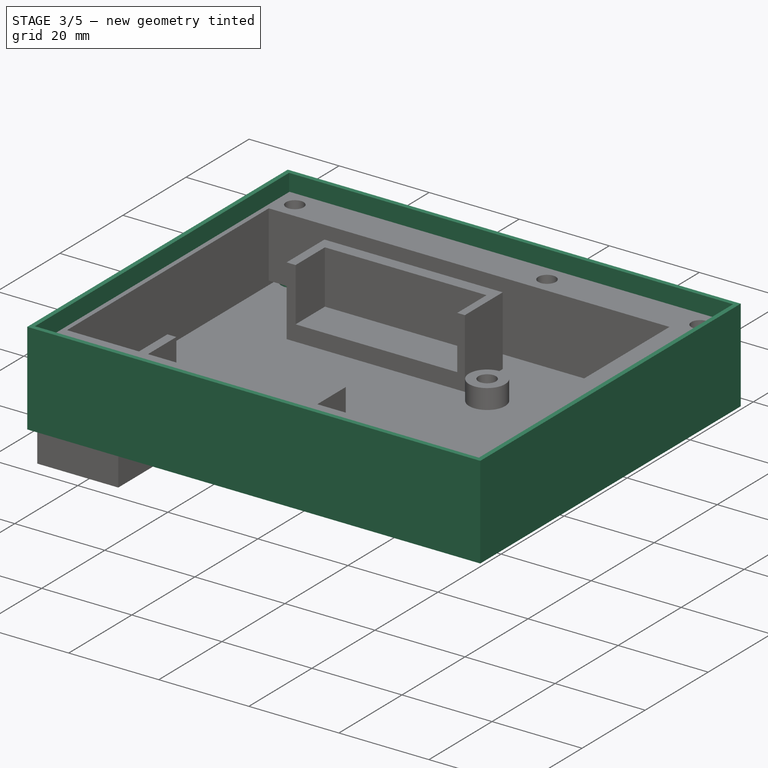
[diagram: stage 3 of 5 — iso view after this stage's code; geometry added in this stage tinted green]
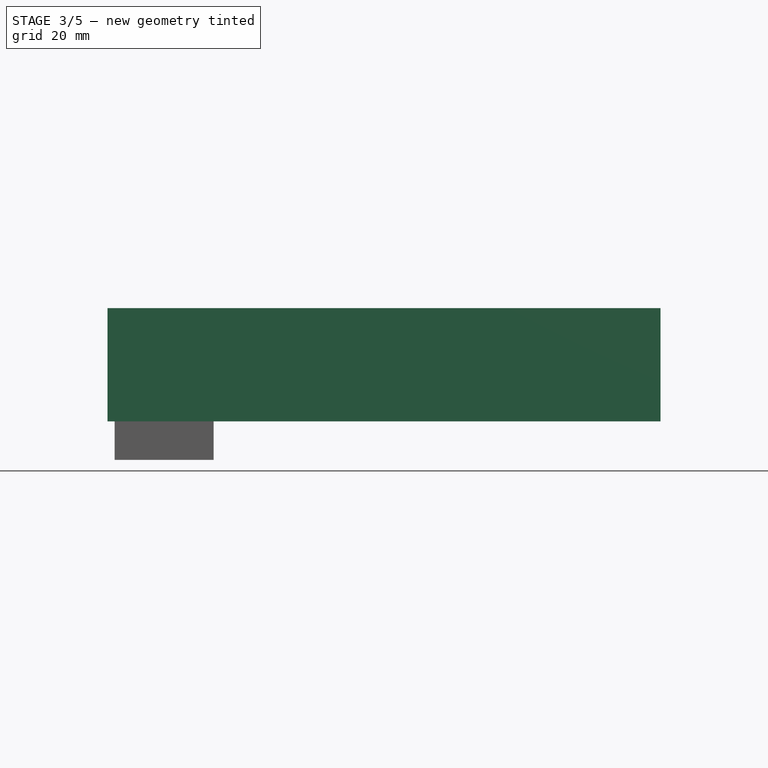
[diagram: stage 3 of 5 — front view after this stage's code; geometry added in this stage tinted green]
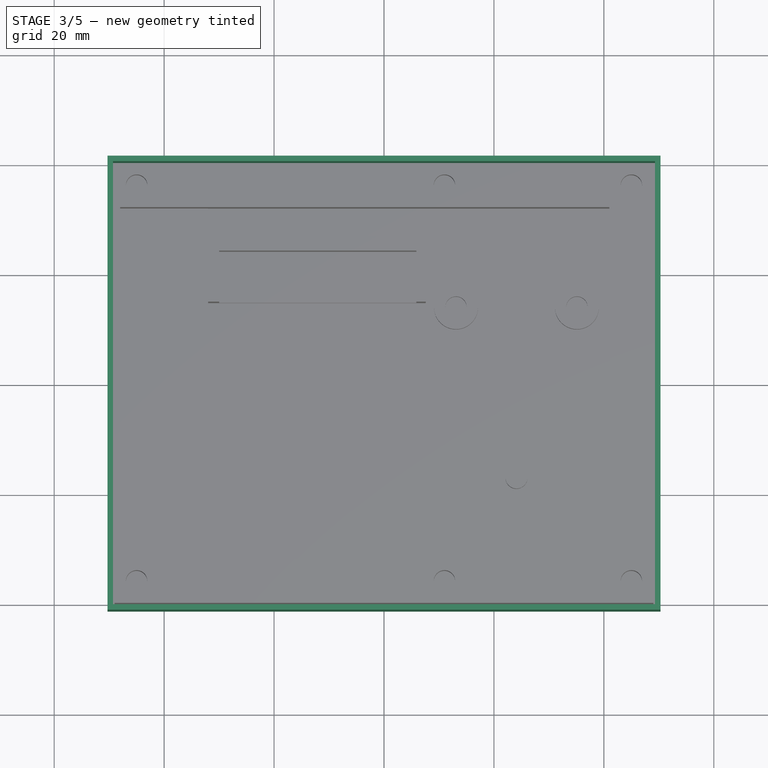
[diagram: stage 3 of 5 — top view after this stage's code; geometry added in this stage tinted green]
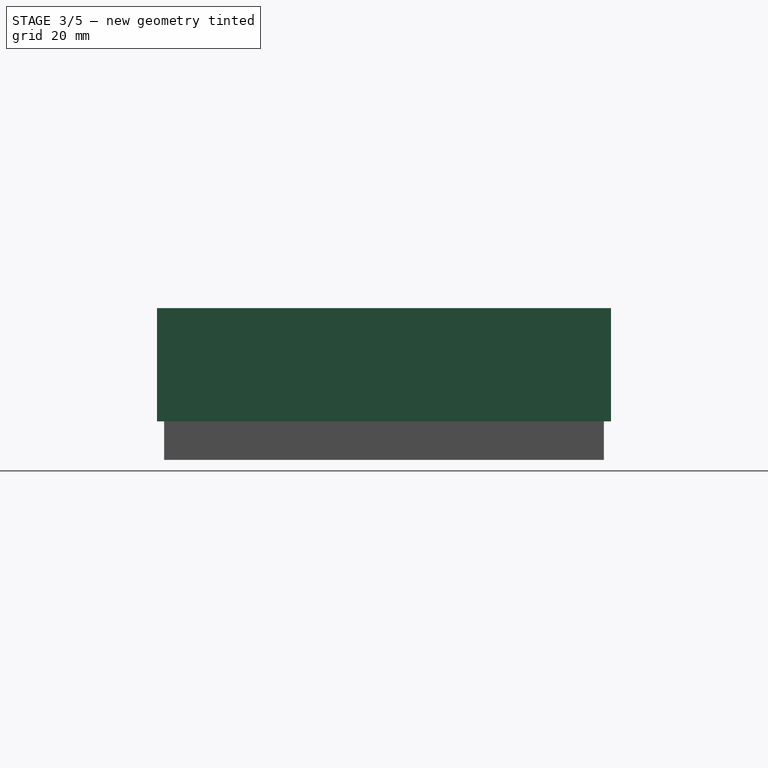
[diagram: stage 3 of 5 — right view after this stage's code; geometry added in this stage tinted green]
FEATURE [Sketcher::SketchObject] Sketch009  label="Lid-BaseSketch"
  ArcFitTolerance = 0
  AttachmentSupport = -> [XY_Plane003]
  FullyConstrained = true
  MakeInternals = false
  MapMode = 5
  expr: Constraints[10] = <<RAKSheet>>.LidWidth
  expr: Constraints[9] = <<RAKSheet>>.LidLength
  sketch-geometry (4):
    g0: LineSegment StartX=-50.3 StartY=41.3 StartZ=0 EndX=50.3 EndY=41.3 EndZ=0
    g1: LineSegment StartX=50.3 StartY=41.3 StartZ=0 EndX=50.3 EndY=-41.3 EndZ=0
    g2: LineSegment StartX=50.3 StartY=-41.3 StartZ=0 EndX=-50.3 EndY=-41.3 EndZ=0
    g3: LineSegment StartX=-50.3 StartY=-41.3 StartZ=0 EndX=-50.3 EndY=41.3 EndZ=0
  constraints (11):
    c: Coincident(g0,g1)
    c: Coincident(g1,g2)
    c: Coincident(g2,g3)
    c: Coincident(g3,g0)
    c: Horizontal(g0)
    c: Horizontal(g2)
    c: Vertical(g1)
    c: Vertical(g3)
    c: Symmetric(g0,g1,g-1)
    c: DistanceX(g0,g0) = 100.6
    c: DistanceY(g1,g0) = 82.6
FEATURE [PartDesign::Pad] Pad006  label="Lid-Base"
  Direction = (0,0,1)
  Length = 1.6
  Length2 = 10
  Profile = -> Sketch009
  ReferenceAxis = -> Sketch009 [N_Axis]
  Suppressed = false
  Type = 0
  expr: Length = <<RAKSheet>>.LidHeight
FEATURE [Sketcher::SketchObject] Sketch010  label="Lid-OverhangSketch"
  ArcFitTolerance = 0
  AttachmentSupport = -> [XY_Plane003]
  FullyConstrained = true
  MakeInternals = false
  MapMode = 5
  expr: Constraints[16] = <<RAKSheet>>.BoxLength + 2 * <<RAKSheet>>.LidMargin
  expr: Constraints[17] = <<RAKSheet>>.LidLength
  expr: Constraints[20] = <<RAKSheet>>.BoxWidth + 2 * <<RAKSheet>>.LidMargin
  expr: Constraints[21] = <<RAKSheet>>.LidWidth
  sketch-geometry (8):
    g0: LineSegment StartX=-50.3 StartY=41.3 StartZ=0 EndX=50.3 EndY=41.3 EndZ=0
    g1: LineSegment StartX=50.3 StartY=41.3 StartZ=0 EndX=50.3 EndY=-41.3 EndZ=0
    g2: LineSegment StartX=50.3 StartY=-41.3 StartZ=0 EndX=-50.3 EndY=-41.3 EndZ=0
    g3: LineSegment StartX=-50.3 StartY=-41.3 StartZ=0 EndX=-50.3 EndY=41.3 EndZ=0
    g4: LineSegment StartX=-49.3 StartY=40.3 StartZ=0 EndX=49.3 EndY=40.3 EndZ=0
    g5: LineSegment StartX=49.3 StartY=40.3 StartZ=0 EndX=49.3 EndY=-40.3 EndZ=0
    g6: LineSegment StartX=49.3 StartY=-40.3 StartZ=0 EndX=-49.3 EndY=-40.3 EndZ=0
    g7: LineSegment StartX=-49.3 StartY=-40.3 StartZ=0 EndX=-49.3 EndY=40.3 EndZ=0
  constraints (22):
    c: Coincident(g0,g1)
    c: Coincident(g1,g2)
    c: Coincident(g2,g3)
    c: Coincident(g3,g0)
    c: Horizontal(g0)
    c: Horizontal(g2)
    c: Vertical(g1)
    c: Vertical(g3)
    c: Coincident(g4,g5)
    c: Coincident(g5,g6)
    c: Coincident(g6,g7)
    c: Coincident(g7,g4)
    c: Horizontal(g4)
    c: Horizontal(g6)
    c: Vertical(g5)
    c: Vertical(g7)
    c: DistanceX(g4,g4) = 98.6
    c: DistanceX(g0,g0) = 100.6
    c: Symmetric(g0,g1,g-1)
    c: Symmetric(g4,g6,g-1)
    c: DistanceY(g5,g4) = 80.6
    c: DistanceY(g1,g0) = 82.6
FEATURE [PartDesign::Pad] Pad007  label="Lid-Overhang"
  BaseFeature = -> Pad006
  Direction = (0,0,1)
  Length = 20.6
  Length2 = 10
  Profile = -> Sketch010
  ReferenceAxis = -> Sketch010 [N_Axis]
  Suppressed = false
  Type = 0
  expr: Length = <<RAKSheet>>.BoxHeight + <<RAKSheet>>.SolarPanelHeight + <<RAKSheet>>.LidHeight
FEATURE [Sketcher::SketchObject] Sketch022
  ArcFitTolerance = 0
  AttachmentSupport = -> [XY_Plane069]
  FullyConstrained = true
  MakeInternals = false
  MapMode = 5
  expr: Constraints[10] = <<RAKSheet>>.BoxLength
  expr: Constraints[11] = <<RAKSheet>>.BoxWidth
  expr: Constraints[24] = <<RAKSheet>>.screwM3ThoughHoleOuterDia
  expr: Constraints[25] = <<RAKSheet>>.BoxWallThickness / 2
  expr: Constraints[26] = <<RAKSheet>>.BoxWallThickness / 2
  expr: Constraints[27] = <<RAKSheet>>.BoxWallThickness / 2
  expr: Constraints[28] = <<RAKSheet>>.StrapHoleDistance
  expr: Constraints[29] = <<RAKSheet>>.BoxWallThickness / 2
  sketch-geometry (11):
    g0: LineSegment [constr] StartX=49 StartY=-40 StartZ=0 EndX=49 EndY=40 EndZ=0
    g1: LineSegment [constr] StartX=49 StartY=40 StartZ=0 EndX=-49 EndY=40 EndZ=0
    g2: LineSegment [constr] StartX=-49 StartY=40 StartZ=0 EndX=-49 EndY=-40 EndZ=0
    g3: LineSegment [constr] StartX=-49 StartY=-40 StartZ=0 EndX=49 EndY=-40 EndZ=0
    g4: GeomPoint [constr] X=0 Y=0 Z=0
    g5: Circle CenterX=-45 CenterY=36 CenterZ=0 NormalX=0 NormalY=0 NormalZ=1 AngleXU=0 Radius=3
    g6: Circle CenterX=11 CenterY=36 CenterZ=0 NormalX=0 NormalY=0 NormalZ=1 AngleXU=0 Radius=3
    g7: Circle CenterX=45 CenterY=36 CenterZ=0 NormalX=0 NormalY=0 NormalZ=1 AngleXU=0 Radius=3
    g8: Circle CenterX=45 CenterY=-36 CenterZ=0 NormalX=0 NormalY=0 NormalZ=1 AngleXU=0 Radius=3
    g9: Circle CenterX=11 CenterY=-36 CenterZ=0 NormalX=0 NormalY=0 NormalZ=1 AngleXU=0 Radius=3
    g10: Circle CenterX=-45 CenterY=-36 CenterZ=0 NormalX=0 NormalY=0 NormalZ=1 AngleXU=0 Radius=3
  constraints (30):
    c: Coincident(g0,g1)
    c: Coincident(g1,g2)
    c: Coincident(g2,g3)
    c: Coincident(g3,g0)
    c: Horizontal(g1)
    c: Horizontal(g3)
    c: Vertical(g0)
    c: Vertical(g2)
    c: Symmetric(g1,g0,g4)
    c: Coincident(g4,g-1)
    c: DistanceX(g1,g1) = 98
    c: DistanceY(g0,g0) = 80
    c: Vertical(g10,g5)
    c: Vertical(g9,g6)
    c: Vertical(g7,g8)
    c: Horizontal(g8,g9)
    c: Horizontal(g9,g10)
    c: Horizontal(g5,g6)
    c: Horizontal(g6,g7)
    c: Equal(g5,g10)
    c: Equal(g5,g6)
    c: Equal(g5,g9)
    c: Equal(g5,g8)
    c: Equal(g5,g7)
    c: Diameter(g5) = 6
    c: DistanceY(g5,g1) = 4
    c: DistanceY(g2,g10) = 4
    c: DistanceX(g2,g10) = 4
    c: DistanceX(g5,g6) = 56
    c: DistanceX(g7,g0) = 4
FEATURE [PartDesign::Pad] Pad015
  BaseFeature = -> Pad014
  Direction = (0,0,1)
  Length = 2.6
  Length2 = 10
  Profile = -> Sketch022
  ReferenceAxis = -> Sketch022 [N_Axis]
  Suppressed = false
  Type = 0
  expr: Length = <<RAKSheet>>.LidHeight + 1 mm
FEATURE [PartDesign::Hole] Hole
  BaseFeature = -> Pad015
  CustomThreadClearance = 0
  Depth = 25
  DepthType = 0
  Diameter = 3.4
  DrillForDepth = false
  DrillPoint = 1
  DrillPointAngle = 118
  HoleCutCountersinkAngle = 90
  HoleCutCustomValues = false
  HoleCutDepth = 0
  HoleCutDiameter = 6.7
  HoleCutType = 4
  ModelThread = false
  Profile = -> Sketch022
  Reversed = true
  Suppressed = false
  Tapered = false
  TaperedAngle = 90
  ThreadClass = 0
  ThreadDepth = 25
  ThreadDepthType = 0
  ThreadDirection = 0
  ThreadFit = 0
  ThreadSize = 9
  ThreadType = 2
  Threaded = false
  UseCustomThreadClearance = false
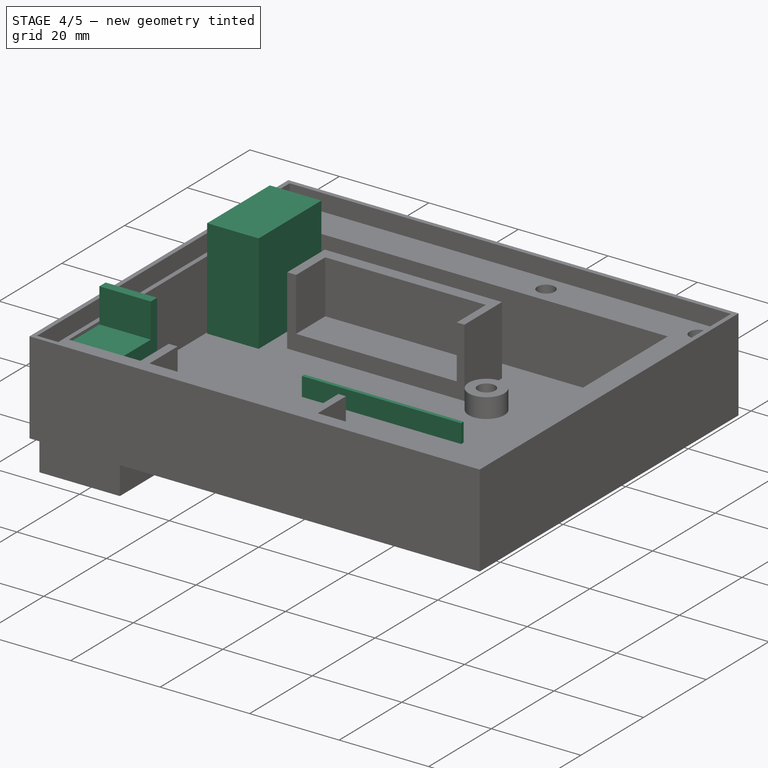
[diagram: stage 4 of 5 — iso view after this stage's code; geometry added in this stage tinted green]
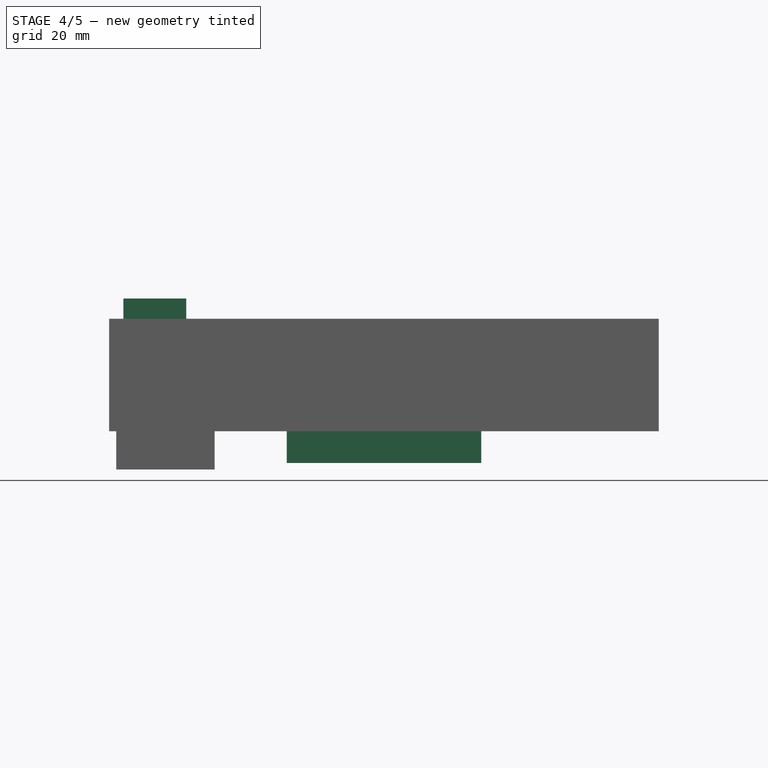
[diagram: stage 4 of 5 — front view after this stage's code; geometry added in this stage tinted green]
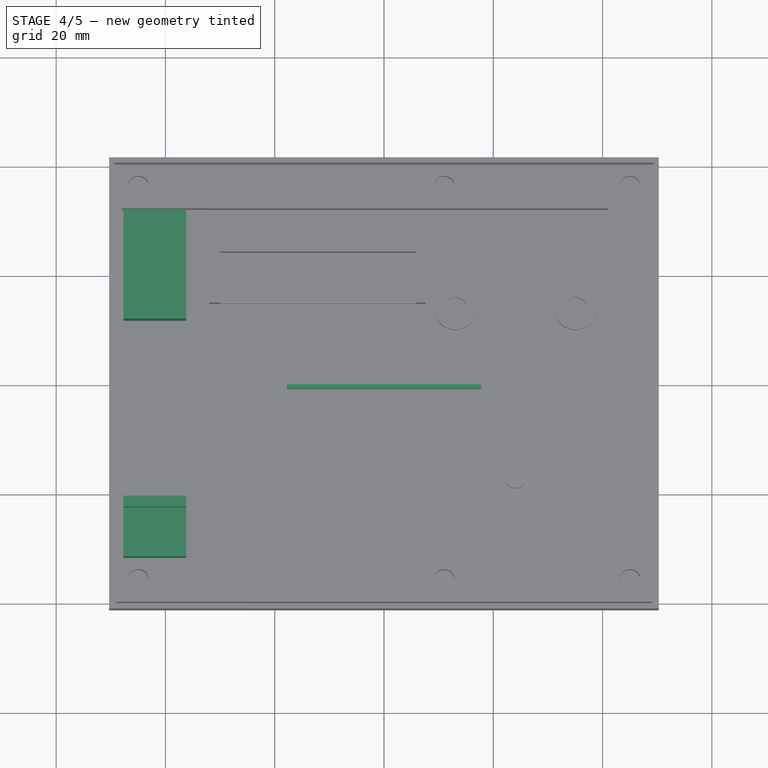
[diagram: stage 4 of 5 — top view after this stage's code; geometry added in this stage tinted green]
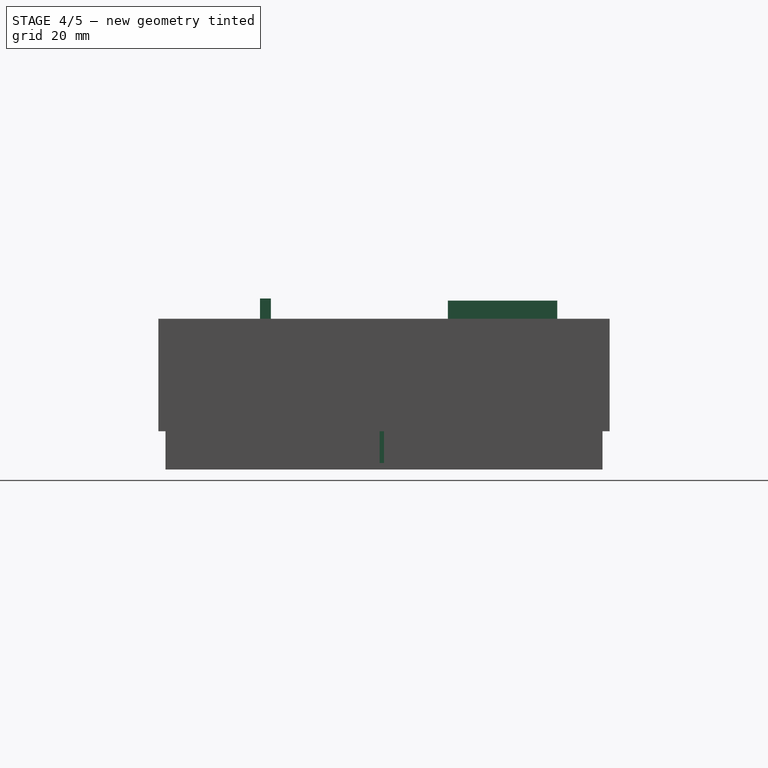
[diagram: stage 4 of 5 — right view after this stage's code; geometry added in this stage tinted green]
FEATURE [Sketcher::SketchObject] Sketch011  label="Lid-AntGPSOffset1Sketch"
  ArcFitTolerance = 0
  AttachmentSupport = -> [XY_Plane003]
  FullyConstrained = true
  MakeInternals = false
  MapMode = 5
  expr: Constraints[19] = <<RAKSheet>>.LidMargin
  expr: Constraints[20] = <<RAKSheet>>.LidAntOffsetWidth
  expr: Constraints[21] = <<RAKSheet>>.LidMargin
  expr: Constraints[22] = <<RAKSheet>>.GPSLength / 2 + <<RAKSheet>>.AntBumpWallThickness
  expr: Constraints[7] = <<RAKSheet>>.BoxInternalLength
  expr: Constraints[8] = <<RAKSheet>>.BoxInternalWidth
  expr: Constraints[9] = <<RAKSheet>>.BoxLength / 2 - <<RAKSheet>>.BoxWallThickness
  sketch-geometry (8):
    g0: LineSegment [constr] StartX=-48 StartY=32 StartZ=0 EndX=41 EndY=32 EndZ=0
    g1: LineSegment [constr] StartX=41 StartY=32 StartZ=0 EndX=41 EndY=-32 EndZ=0
    g2: LineSegment [constr] StartX=41 StartY=-32 StartZ=0 EndX=-48 EndY=-32 EndZ=0
    g3: LineSegment [constr] StartX=-48 StartY=-32 StartZ=0 EndX=-48 EndY=32 EndZ=0
    g4: LineSegment StartX=-47.7 StartY=-22.7 StartZ=0 EndX=-36.2 EndY=-22.7 EndZ=0
    g5: LineSegment StartX=-36.2 StartY=-22.7 StartZ=0 EndX=-36.2 EndY=-31.7 EndZ=0
    g6: LineSegment StartX=-36.2 StartY=-31.7 StartZ=0 EndX=-47.7 EndY=-31.7 EndZ=0
    g7: LineSegment StartX=-47.7 StartY=-31.7 StartZ=0 EndX=-47.7 EndY=-22.7 EndZ=0
  constraints (23):
    c: Coincident(g0,g1)
    c: Coincident(g1,g2)
    c: Coincident(g2,g3)
    c: Coincident(g3,g0)
    c: Horizontal(g0)
    c: Horizontal(g2)
    c: Vertical(g3)
    c: DistanceX(g0,g0) = 89
    c: DistanceY(g1,g1) = 64
    c: DistanceX(g-1,g1) = 41
    c: Symmetric(g1,g0,g-1)
    c: Coincident(g4,g5)
    c: Coincident(g5,g6)
    c: Coincident(g6,g7)
    c: Coincident(g7,g4)
    c: Horizontal(g4)
    c: Horizontal(g6)
    c: Vertical(g5)
    c: Vertical(g7)
    c: DistanceX(g0,g4) = 0.3
    c: DistanceX(g4,g4) = 11.5
    c: DistanceY(g2,g6) = 0.3
    c: DistanceY(g7,g7) = 9
FEATURE [PartDesign::Pad] Pad008  label="Lid-AntGPSOffset1"
  BaseFeature = -> Pad007
  Direction = (0,0,1)
  Length = 16.6
  Length2 = 10
  Profile = -> Sketch011
  ReferenceAxis = -> Sketch011 [N_Axis]
  Suppressed = false
  Type = 0
  expr: Length = <<RAKSheet>>.LidAntGPSOffsetHeight
FEATURE [Sketcher::SketchObject] Sketch012  label="Lid-AntGPSOffset2Sketch"
  ArcFitTolerance = 0
  AttachmentSupport = -> [XY_Plane003]
  FullyConstrained = true
  MakeInternals = false
  MapMode = 5
  expr: Constraints[10] = <<RAKSheet>>.BoxLength / 2 - <<RAKSheet>>.BoxWallThickness
  expr: Constraints[19] = <<RAKSheet>>.LidAntOffsetWidth
  expr: Constraints[20] = <<RAKSheet>>.LidMargin
  expr: Constraints[21] = <<RAKSheet>>.LidMargin + <<RAKSheet>>.GPSLength - <<RAKSheet>>.BoxWallThickness + <<RAKSheet>>.AntBumpWallThickness
  expr: Constraints[22] = <<RAKSheet>>.AntBumpWallThickness * 2
  expr: Constraints[7] = <<RAKSheet>>.BoxInternalLength
  expr: Constraints[8] = <<RAKSheet>>.BoxInternalWidth
  sketch-geometry (8):
    g0: LineSegment [constr] StartX=-48 StartY=32 StartZ=0 EndX=41 EndY=32 EndZ=0
    g1: LineSegment [constr] StartX=41 StartY=32 StartZ=0 EndX=41 EndY=-32 EndZ=0
    g2: LineSegment [constr] StartX=41 StartY=-32 StartZ=0 EndX=-48 EndY=-32 EndZ=0
    g3: LineSegment [constr] StartX=-48 StartY=-32 StartZ=0 EndX=-48 EndY=32 EndZ=0
    g4: LineSegment StartX=-47.7 StartY=-22.7 StartZ=0 EndX=-36.2 EndY=-22.7 EndZ=0
    g5: LineSegment StartX=-36.2 StartY=-22.7 StartZ=0 EndX=-36.2 EndY=-20.7 EndZ=0
    g6: LineSegment StartX=-36.2 StartY=-20.7 StartZ=0 EndX=-47.7 EndY=-20.7 EndZ=0
    g7: LineSegment StartX=-47.7 StartY=-20.7 StartZ=0 EndX=-47.7 EndY=-22.7 EndZ=0
  constraints (23):
    c: Coincident(g0,g1)
    c: Coincident(g1,g2)
    c: Coincident(g2,g3)
    c: Coincident(g3,g0)
    c: Horizontal(g0)
    c: Horizontal(g2)
    c: Vertical(g3)
    c: DistanceX(g0,g0) = 89
    c: DistanceY(g1,g1) = 64
    c: Symmetric(g0,g1,g-1)
    c: DistanceX(g-1,g1) = 41
    c: Coincident(g4,g5)
    c: Coincident(g5,g6)
    c: Coincident(g6,g7)
    c: Coincident(g7,g4)
    c: Horizontal(g4)
    c: Horizontal(g6)
    c: Vertical(g5)
    c: Vertical(g7)
    c: DistanceX(g4,g4) = 11.5
    c: DistanceX(g2,g4) = 0.3
    c: DistanceY(g2,g4) = 9.3
    c: DistanceY(g4,g6) = 2
FEATURE [PartDesign::Pad] Pad009  label="Lid-AntGPSOffset2"
  BaseFeature = -> Pad008
  Direction = (0,0,1)
  Length = 24.3
  Length2 = 10
  Profile = -> Sketch012
  ReferenceAxis = -> Sketch012 [N_Axis]
  Suppressed = false
  Type = 0
  expr: Length = Spreadsheet.LidAntGPSHolderOffsetHeight
FEATURE [Sketcher::SketchObject] Sketch014  label="Lid-ScrewHolesSketch"
  ArcFitTolerance = 0
  AttachmentSupport = -> [XY_Plane003]
  FullyConstrained = true
  MakeInternals = false
  MapMode = 5
  expr: Constraints[10] = <<RAKSheet>>.BoxWidth
  expr: Constraints[11] = <<RAKSheet>>.BoxLength
  expr: Constraints[24] = <<RAKSheet>>.screwM3ThoughHoleInnerDia
  expr: Constraints[25] = <<RAKSheet>>.BoxWallThickness / 2
  expr: Constraints[26] = <<RAKSheet>>.StrapHoleDistance
  expr: Constraints[27] = <<RAKSheet>>.BoxWallThickness / 2
  expr: Constraints[28] = <<RAKSheet>>.BoxWallThickness / 2
  expr: Constraints[29] = <<RAKSheet>>.BoxWallThickness / 2
  sketch-geometry (11):
    g0: LineSegment [constr] StartX=-49 StartY=40 StartZ=0 EndX=-49 EndY=-40 EndZ=0
    g1: LineSegment [constr] StartX=-49 StartY=-40 StartZ=0 EndX=49 EndY=-40 EndZ=0
    g2: LineSegment [constr] StartX=49 StartY=-40 StartZ=0 EndX=49 EndY=40 EndZ=0
    g3: LineSegment [constr] StartX=49 StartY=40 StartZ=0 EndX=-49 EndY=40 EndZ=0
    g4: GeomPoint [constr] X=0 Y=0 Z=0
    g5: Circle CenterX=-45 CenterY=36 CenterZ=0 NormalX=0 NormalY=0 NormalZ=1 AngleXU=0 Radius=1.75
    g6: Circle CenterX=11 CenterY=36 CenterZ=0 NormalX=0 NormalY=0 NormalZ=1 AngleXU=0 Radius=1.75
    g7: Circle CenterX=45 CenterY=36 CenterZ=0 NormalX=0 NormalY=0 NormalZ=1 AngleXU=0 Radius=1.75
    g8: Circle CenterX=45 CenterY=-36 CenterZ=0 NormalX=0 NormalY=0 NormalZ=1 AngleXU=0 Radius=1.75
    g9: Circle CenterX=11 CenterY=-36 CenterZ=0 NormalX=0 NormalY=0 NormalZ=1 AngleXU=0 Radius=1.75
    g10: Circle CenterX=-45 CenterY=-36 CenterZ=0 NormalX=0 NormalY=0 NormalZ=1 AngleXU=0 Radius=1.75
  constraints (26):
    c: Coincident(g0,g1)
    c: Coincident(g1,g2)
    c: Coincident(g2,g3)
    c: Coincident(g3,g0)
    c: Horizontal(g1)
    c: Horizontal(g3)
    c: Vertical(g0)
    c: Vertical(g2)
    c: Symmetric(g1,g0,g4)
    c: Coincident(g4,g-1)
    c: DistanceY(g2,g2) = 80
    c: DistanceX(g3,g3) = 98
    c: Vertical(g5,g10)
    c: Vertical(g6,g9)
    c: Vertical(g7,g8)
    c: Horizontal(g8,g9)
    c: Horizontal(g9,g10)
    c: Horizontal(g6,g5)
    c: Horizontal(g5,g7)
    c: Equal(g5, g6-g10) x5
    c: Diameter(g5) = 3.5
    c: DistanceY(g5,g0) = 4
    c: DistanceX(g5,g6) = 56
    c: DistanceX(g0,g5) = 4
    c: DistanceX(g7,g2) = 4
    c: DistanceY(g0,g10) = 4
FEATURE [PartDesign::Pocket] Pocket004  label="Lid-ScrewHoles"
  BaseFeature = -> Pad009
  Direction = (0,0,-1)
  Length = 1.6
  Length2 = 5
  Profile = -> Sketch014
  ReferenceAxis = -> Sketch014 [N_Axis]
  Reversed = true
  Suppressed = false
  Type = 0
  expr: Length = <<RAKSheet>>.LidHeight
FEATURE [Part::Feature] Part__Feature  label="Open CASCADE STEP translator 6.8 1.1.1.1"
  shape: bbox 35 x 30 x 1.01 mm, 101 faces (baked)
FEATURE [App::Part] Open_CASCADE_STEP_translator_6_8_1_1_1  label="Open CASCADE STEP translator 6.8 1.1.1"
  Group = -> [Part__Feature]
  Origin = -> Origin004
  Placement = pos=(0,0,-1.0098) rot=(0,0,1;0rad)
FEATURE [App::Part] Board
  Group = -> [Open_CASCADE_STEP_translator_6_8_1_1_1]
  Origin = -> Origin005
FEATURE [Part::Feature] Part__Feature001  label="Open CASCADE STEP translator 6.8 1.2.1.1"
  shape: bbox 8.301 x 3.726 x 7.901 mm, 1028 faces (baked)
FEATURE [Part::Feature] Part__Feature002  label="Open CASCADE STEP translator 6.8 1.2.1.2"
  shape: bbox 1.225 x 1.555 x 6.179 mm, 43 faces (baked)
FEATURE [Part::Feature] Part__Feature003  label="Open CASCADE STEP translator 6.8 1.2.1.3"
  shape: bbox 0.34 x 1.49 x 5.529 mm, 48 faces (baked)
FEATURE [Part::Feature] Part__Feature004  label="Open CASCADE STEP translator 6.8 1.2.1.4"
  shape: bbox 0.355 x 1.49 x 5.529 mm, 45 faces (baked)
FEATURE [Part::Feature] Part__Feature005  label="Open CASCADE STEP translator 6.8 1.2.1.5"
  shape: bbox 0.34 x 1.49 x 6.179 mm, 29 faces (baked)
FEATURE [Part::Feature] Part__Feature006  label="Open CASCADE STEP translator 6.8 1.2.1.6"
  shape: bbox 0.34 x 1.49 x 5.529 mm, 29 faces (baked)
FEATURE [Part::Feature] Part__Feature007  label="Open CASCADE STEP translator 6.8 1.2.1.7"
  shape: bbox 0.34 x 1.49 x 5.529 mm, 29 faces (baked)
FEATURE [Part::Feature] Part__Feature008  label="Open CASCADE STEP translator 6.8 1.2.1.8"
  shape: bbox 0.34 x 1.49 x 5.529 mm, 29 faces (baked)
FEATURE [Part::Feature] Part__Feature009  label="Open CASCADE STEP translator 6.8 1.2.1.9"
  shape: bbox 0.34 x 1.49 x 5.529 mm, 29 faces (baked)
FEATURE [Part::Feature] Part__Feature010  label="Open CASCADE STEP translator 6.8 1.2.1.10"
  shape: bbox 0.34 x 1.49 x 6.179 mm, 29 faces (baked)
FEATURE [Part::Feature] Part__Feature011  label="Open CASCADE STEP translator 6.8 1.2.1.11"
  shape: bbox 0.34 x 1.49 x 5.529 mm, 48 faces (baked)
FEATURE [Part::Feature] Part__Feature012  label="Open CASCADE STEP translator 6.8 1.2.1.12"
  shape: bbox 0.355 x 1.49 x 5.529 mm, 48 faces (baked)
FEATURE [Part::Feature] Part__Feature013  label="Open CASCADE STEP translator 6.8 1.2.1.13"
  shape: bbox 1.315 x 1.555 x 6.179 mm, 45 faces (baked)
FEATURE [Part::Feature] Part__Feature014  label="Open CASCADE STEP translator 6.8 1.2.1.14"
  shape: bbox 8.25 x 2.795 x 1.8 mm, 178 faces (baked)
FEATURE [Part::Feature] Part__Feature015  label="Open CASCADE STEP translator 6.8 1.2.1.15"
  shape: bbox 0.8024 x 0.015 x 0.08 mm, 6 faces (baked)
FEATURE [Part::Feature] Part__Feature016  label="Open CASCADE STEP translator 6.8 1.2.1.16"
  shape: bbox 8.942 x 3.745 x 8.001 mm, 393 faces (baked)
FEATURE [App::Part] USB_C_04_24PIN  label="USB-C-04-24PIN"
  Group = -> [Part__Feature001,Part__Feature002,Part__Feature003,Part__Feature004,Part__Feature005,Part__Feature006,Part__Feature007,Part__Feature008,Part__Feature009,Part__Feature010,Part__Feature011,Part__Feature012,Part__Feature013,Part__Feature014,Part__Feature015,Part__Feature016]
  Origin = -> Origin006
  Placement = pos=(-0.525543,22.4395,-0.599999) rot=(0.57735,-0.57735,-0.57735;2.0944rad)
FEATURE [App::Part] J1
  Group = -> [USB_C_04_24PIN]
  Origin = -> Origin007
FEATURE [Part::Feature] Part__Feature017  label="SOT-23-6"
  Placement = pos=(19.7296,18.377,-1.0098) rot=(-0.707107,0.707107,0;3.14159rad)
  shape: bbox 2.426 x 2.794 x 1.092 mm, 98 faces (baked)
FEATURE [App::Part] U3
  Group = -> [Part__Feature017]
  Origin = -> Origin008
FEATURE [Part::Feature] Part__Feature018  label="RES_1005-0402"
  Placement = pos=(17.4752,20.1422,-1.0098) rot=(-0.57735,-0.57735,0.57735;2.0944rad)
  shape: bbox 0.55 x 1.05 x 0.3 mm, 6 faces (baked)
FEATURE [Part::Feature] Part__Feature019  label="RES_1005-0403"
  Placement = pos=(17.4752,20.1422,-1.0098) rot=(-0.57735,-0.57735,0.57735;2.0944rad)
  shape: bbox 0.55 x 0.25 x 0.4 mm, 14 faces (baked)
FEATURE [Part::Feature] Part__Feature020  label="RES_1005-0404"
  Placement = pos=(17.4752,20.1422,-1.0098) rot=(-0.57735,-0.57735,0.57735;2.0944rad)
  shape: bbox 0.55 x 0.25 x 0.4 mm, 14 faces (baked)
FEATURE [Part::Feature] Part__Feature021  label="RES_1005-0405"
  Placement = pos=(17.4752,20.1422,-1.0098) rot=(-0.57735,-0.57735,0.57735;2.0944rad)
  shape: bbox 0.55 x 0.65 x 0.06 mm, 56 faces (baked)
FEATURE [App::Part] RES_1005_0402  label="RES_1005-0406"
  Group = -> [Part__Feature018,Part__Feature019,Part__Feature020,Part__Feature021]
  Origin = -> Origin009
FEATURE [App::Part] R11
  Group = -> [RES_1005_0402]
  Origin = -> Origin010
FEATURE [Part::Feature] Part__Feature022  label="RES_1005-0407"
  Placement = pos=(17.907,15.1892,-1.0098) rot=(0,0.707107,-0.707107;3.14159rad)
  shape: bbox 1.05 x 0.55 x 0.3 mm, 6 faces (baked)
FEATURE [Part::Feature] Part__Feature023  label="RES_1005-0408"
  Placement = pos=(17.907,15.1892,-1.0098) rot=(0,0.707107,-0.707107;3.14159rad)
  shape: bbox 0.25 x 0.55 x 0.4 mm, 14 faces (baked)
FEATURE [Part::Feature] Part__Feature024  label="RES_1005-0409"
  Placement = pos=(17.907,15.1892,-1.0098) rot=(0,0.707107,-0.707107;3.14159rad)
  shape: bbox 0.25 x 0.55 x 0.4 mm, 14 faces (baked)
FEATURE [Part::Feature] Part__Feature025  label="RES_1005-0410"
  Placement = pos=(17.907,15.1892,-1.0098) rot=(0,0.707107,-0.707107;3.14159rad)
  shape: bbox 0.65 x 0.55 x 0.06 mm, 56 faces (baked)
FEATURE [App::Part] RES_1005_0403  label="RES_1005-0411"
  Group = -> [Part__Feature022,Part__Feature023,Part__Feature024,Part__Feature025]
  Origin = -> Origin011
FEATURE [App::Part] R10
  Group = -> [RES_1005_0403]
  Origin = -> Origin012
FEATURE [Part::Feature] Part__Feature026  label="C0402"
  Placement = pos=(19.1595,20.2183,-1.2638) rot=(0.707107,0.707107,0;3.14159rad)
  shape: bbox 0.5 x 0.9958 x 0.5 mm, 76 faces (baked)
FEATURE [App::Part] C11
  Group = -> [Part__Feature026]
  Origin = -> Origin013
FEATURE [Part::Feature] Part__Feature027  label="C0403"
  Placement = pos=(15.3544,16.0861,-1.2638) rot=(0,1,0;3.14159rad)
  shape: bbox 0.9958 x 0.5 x 0.5 mm, 76 faces (baked)
FEATURE [App::Part] C10
  Group = -> [Part__Feature027]
  Origin = -> Origin014
FEATURE [Part::Feature] Part__Feature028  label="RES_1005-0412"
  Placement = pos=(7.7343,5.461,0) rot=(1,0,0;1.5708rad)
  shape: bbox 1.05 x 0.55 x 0.3 mm, 6 faces (baked)
FEATURE [Part::Feature] Part__Feature029  label="RES_1005-0413"
  Placement = pos=(7.7343,5.461,0) rot=(1,0,0;1.5708rad)
  shape: bbox 0.25 x 0.55 x 0.4 mm, 14 faces (baked)
FEATURE [Part::Feature] Part__Feature030  label="RES_1005-0414"
  Placement = pos=(7.7343,5.461,0) rot=(1,0,0;1.5708rad)
  shape: bbox 0.25 x 0.55 x 0.4 mm, 14 faces (baked)
FEATURE [Part::Feature] Part__Feature031  label="RES_1005-0415"
  Placement = pos=(7.7343,5.461,0) rot=(1,0,0;1.5708rad)
  shape: bbox 0.65 x 0.55 x 0.06 mm, 56 faces (baked)
FEATURE [App::Part] RES_1005_0404  label="RES_1005-0416"
  Group = -> [Part__Feature028,Part__Feature029,Part__Feature030,Part__Feature031]
  Origin = -> Origin015
FEATURE [App::Part] R3
  Group = -> [RES_1005_0404]
  Origin = -> Origin016
FEATURE [Part::Feature] Part__Feature032  label="smtso-m1_2-0_8-et"
  Placement = pos=(22.8001,10.85,-1.0098) rot=(1,0,0;3.14159rad)
  shape: bbox 2.5 x 2.5 x 1.8 mm, 9 faces (baked)
FEATURE [App::Part] M10
  Group = -> [Part__Feature032]
  Origin = -> Origin017
FEATURE [Part::Feature] Part__Feature033  label="WCSP6"
  Placement = pos=(14.8876,23.73,-1.0098) rot=(-0.707107,0.707107,0;3.14159rad)
  shape: bbox 1.113 x 1.226 x 0.625 mm, 21 faces (baked)
FEATURE [App::Part] U2
  Group = -> [Part__Feature033]
  Origin = -> Origin018
FEATURE [Part::Feature] Part__Feature034  label="SOT-23-5"
  Placement = pos=(11.2522,22.9616,-1.5178) rot=(-1,0,0;1.5708rad)
  shape: bbox 3 x 2.5 x 1.1 mm, 75 faces (baked)
FEATURE [App::Part] U1
  Group = -> [Part__Feature034]
  Origin = -> Origin019
FEATURE [Part::Feature] Part__Feature035  label="RES_1005-0417"
  Placement = pos=(9.8806,5.461,0) rot=(0,0.707107,0.707107;3.14159rad)
  shape: bbox 1.05 x 0.55 x 0.3 mm, 6 faces (baked)
FEATURE [Part::Feature] Part__Feature036  label="RES_1005-0418"
  Placement = pos=(9.8806,5.461,0) rot=(0,0.707107,0.707107;3.14159rad)
  shape: bbox 0.25 x 0.55 x 0.4 mm, 14 faces (baked)
FEATURE [Part::Feature] Part__Feature037  label="RES_1005-0419"
  Placement = pos=(9.8806,5.461,0) rot=(0,0.707107,0.707107;3.14159rad)
  shape: bbox 0.25 x 0.55 x 0.4 mm, 14 faces (baked)
FEATURE [Part::Feature] Part__Feature038  label="RES_1005-0420"
  Placement = pos=(9.8806,5.461,0) rot=(0,0.707107,0.707107;3.14159rad)
  shape: bbox 0.65 x 0.55 x 0.06 mm, 56 faces (baked)
FEATURE [App::Part] RES_1005_0405  label="RES_1005-0421"
  Group = -> [Part__Feature035,Part__Feature036,Part__Feature037,Part__Feature038]
  Origin = -> Origin020
FEATURE [App::Part] R9
  Group = -> [RES_1005_0405]
  Origin = -> Origin021
FEATURE [Part::Feature] Part__Feature039  label="RES_1005-0422"
  Placement = pos=(16.8783,25.2222,-1.0098) rot=(0,0.707107,-0.707107;3.14159rad)
  shape: bbox 1.05 x 0.55 x 0.3 mm, 6 faces (baked)
FEATURE [Part::Feature] Part__Feature040  label="RES_1005-0423"
  Placement = pos=(16.8783,25.2222,-1.0098) rot=(0,0.707107,-0.707107;3.14159rad)
  shape: bbox 0.25 x 0.55 x 0.4 mm, 14 faces (baked)
FEATURE [Part::Feature] Part__Feature041  label="RES_1005-0424"
  Placement = pos=(16.8783,25.2222,-1.0098) rot=(0,0.707107,-0.707107;3.14159rad)
  shape: bbox 0.25 x 0.55 x 0.4 mm, 14 faces (baked)
FEATURE [Part::Feature] Part__Feature042  label="RES_1005-0425"
  Placement = pos=(16.8783,25.2222,-1.0098) rot=(0,0.707107,-0.707107;3.14159rad)
  shape: bbox 0.65 x 0.55 x 0.06 mm, 56 faces (baked)
FEATURE [App::Part] RES_1005_0406  label="RES_1005-0426"
  Group = -> [Part__Feature039,Part__Feature040,Part__Feature041,Part__Feature042]
  Origin = -> Origin022
FEATURE [App::Part] R8
  Group = -> [RES_1005_0406]
  Origin = -> Origin023
FEATURE [Part::Feature] Part__Feature043  label="RES_1005-0427"
  Placement = pos=(5.1562,16.1798,-1.0098) rot=(0,0.707107,-0.707107;3.14159rad)
  shape: bbox 1.05 x 0.55 x 0.3 mm, 6 faces (baked)
FEATURE [Part::Feature] Part__Feature044  label="RES_1005-0428"
  Placement = pos=(5.1562,16.1798,-1.0098) rot=(0,0.707107,-0.707107;3.14159rad)
  shape: bbox 0.25 x 0.55 x 0.4 mm, 14 faces (baked)
FEATURE [Part::Feature] Part__Feature045  label="RES_1005-0429"
  Placement = pos=(5.1562,16.1798,-1.0098) rot=(0,0.707107,-0.707107;3.14159rad)
  shape: bbox 0.25 x 0.55 x 0.4 mm, 14 faces (baked)
FEATURE [Part::Feature] Part__Feature046  label="RES_1005-0430"
  Placement = pos=(5.1562,16.1798,-1.0098) rot=(0,0.707107,-0.707107;3.14159rad)
  shape: bbox 0.65 x 0.55 x 0.06 mm, 56 faces (baked)
FEATURE [App::Part] RES_1005_0407  label="RES_1005-0431"
  Group = -> [Part__Feature043,Part__Feature044,Part__Feature045,Part__Feature046]
  Origin = -> Origin024
FEATURE [App::Part] R7
  Group = -> [RES_1005_0407]
  Origin = -> Origin025
FEATURE [Part::Feature] Part__Feature047  label="RES_1005-0432"
  Placement = pos=(8.99161,20.1676,0) rot=(0.57735,-0.57735,-0.57735;2.0944rad)
  shape: bbox 0.55 x 1.05 x 0.3 mm, 6 faces (baked)
FEATURE [Part::Feature] Part__Feature048  label="RES_1005-0433"
  Placement = pos=(8.99161,20.1676,0) rot=(0.57735,-0.57735,-0.57735;2.0944rad)
  shape: bbox 0.55 x 0.25 x 0.4 mm, 14 faces (baked)
FEATURE [Part::Feature] Part__Feature049  label="RES_1005-0434"
  Placement = pos=(8.99161,20.1676,0) rot=(0.57735,-0.57735,-0.57735;2.0944rad)
  shape: bbox 0.55 x 0.25 x 0.4 mm, 14 faces (baked)
FEATURE [Part::Feature] Part__Feature050  label="RES_1005-0435"
  Placement = pos=(8.99161,20.1676,0) rot=(0.57735,-0.57735,-0.57735;2.0944rad)
  shape: bbox 0.55 x 0.65 x 0.06 mm, 56 faces (baked)
FEATURE [App::Part] RES_1005_0408  label="RES_1005-0436"
  Group = -> [Part__Feature047,Part__Feature048,Part__Feature049,Part__Feature050]
  Origin = -> Origin026
FEATURE [App::Part] R6
  Group = -> [RES_1005_0408]
  Origin = -> Origin027
FEATURE [Part::Feature] Part__Feature051  label="RES_1005-0437"
  Placement = pos=(16.8783,27.4828,-1.0098) rot=(-1,0,0;1.5708rad)
  shape: bbox 1.05 x 0.55 x 0.3 mm, 6 faces (baked)
FEATURE [Part::Feature] Part__Feature052  label="RES_1005-0438"
  Placement = pos=(16.8783,27.4828,-1.0098) rot=(-1,0,0;1.5708rad)
  shape: bbox 0.25 x 0.55 x 0.4 mm, 14 faces (baked)
FEATURE [Part::Feature] Part__Feature053  label="RES_1005-0439"
  Placement = pos=(16.8783,27.4828,-1.0098) rot=(-1,0,0;1.5708rad)
  shape: bbox 0.25 x 0.55 x 0.4 mm, 14 faces (baked)
FEATURE [Part::Feature] Part__Feature054  label="RES_1005-0440"
  Placement = pos=(16.8783,27.4828,-1.0098) rot=(-1,0,0;1.5708rad)
  shape: bbox 0.65 x 0.55 x 0.06 mm, 56 faces (baked)
FEATURE [App::Part] RES_1005_0409  label="RES_1005-0441"
  Group = -> [Part__Feature051,Part__Feature052,Part__Feature053,Part__Feature054]
  Origin = -> Origin028
FEATURE [App::Part] R5
  Group = -> [RES_1005_0409]
  Origin = -> Origin029
FEATURE [Part::Feature] Part__Feature055  label="RES_1005-0442"
  Placement = pos=(16.8783,26.3398,-1.0098) rot=(0,0.707107,-0.707107;3.14159rad)
  shape: bbox 1.05 x 0.55 x 0.3 mm, 6 faces (baked)
FEATURE [Part::Feature] Part__Feature056  label="RES_1005-0443"
  Placement = pos=(16.8783,26.3398,-1.0098) rot=(0,0.707107,-0.707107;3.14159rad)
  shape: bbox 0.25 x 0.55 x 0.4 mm, 14 faces (baked)
FEATURE [Part::Feature] Part__Feature057  label="RES_1005-0444"
  Placement = pos=(16.8783,26.3398,-1.0098) rot=(0,0.707107,-0.707107;3.14159rad)
  shape: bbox 0.25 x 0.55 x 0.4 mm, 14 faces (baked)
FEATURE [Part::Feature] Part__Feature058  label="RES_1005-0445"
  Placement = pos=(16.8783,26.3398,-1.0098) rot=(0,0.707107,-0.707107;3.14159rad)
  shape: bbox 0.65 x 0.55 x 0.06 mm, 56 faces (baked)
FEATURE [App::Part] RES_1005_0410  label="RES_1005-0446"
  Group = -> [Part__Feature055,Part__Feature056,Part__Feature057,Part__Feature058]
  Origin = -> Origin030
FEATURE [App::Part] R4
  Group = -> [RES_1005_0410]
  Origin = -> Origin031
FEATURE [Part::Feature] Part__Feature059  label="RES_1005-0447"
  Placement = pos=(9.06781,22.3012,-1.0098) rot=(-0.57735,0.57735,-0.57735;2.0944rad)
  shape: bbox 0.55 x 1.05 x 0.3 mm, 6 faces (baked)
FEATURE [Part::Feature] Part__Feature060  label="RES_1005-0448"
  Placement = pos=(9.06781,22.3012,-1.0098) rot=(-0.57735,0.57735,-0.57735;2.0944rad)
  shape: bbox 0.55 x 0.25 x 0.4 mm, 14 faces (baked)
FEATURE [Part::Feature] Part__Feature061  label="RES_1005-0449"
  Placement = pos=(9.06781,22.3012,-1.0098) rot=(-0.57735,0.57735,-0.57735;2.0944rad)
  shape: bbox 0.55 x 0.25 x 0.4 mm, 14 faces (baked)
FEATURE [Part::Feature] Part__Feature062  label="RES_1005-0450"
  Placement = pos=(9.06781,22.3012,-1.0098) rot=(-0.57735,0.57735,-0.57735;2.0944rad)
  shape: bbox 0.55 x 0.65 x 0.06 mm, 56 faces (baked)
FEATURE [App::Part] RES_1005_0411  label="RES_1005-0451"
  Group = -> [Part__Feature059,Part__Feature060,Part__Feature061,Part__Feature062]
  Origin = -> Origin032
FEATURE [App::Part] R2
  Group = -> [RES_1005_0411]
  Origin = -> Origin033
FEATURE [Part::Feature] Part__Feature063  label="RES_1005-0452"
  Placement = pos=(5.0038,9.0932,0) rot=(0.57735,-0.57735,-0.57735;2.0944rad)
  shape: bbox 0.55 x 1.05 x 0.3 mm, 6 faces (baked)
FEATURE [Part::Feature] Part__Feature064  label="RES_1005-0453"
  Placement = pos=(5.0038,9.0932,0) rot=(0.57735,-0.57735,-0.57735;2.0944rad)
  shape: bbox 0.55 x 0.25 x 0.4 mm, 14 faces (baked)
FEATURE [Part::Feature] Part__Feature065  label="RES_1005-0454"
  Placement = pos=(5.0038,9.0932,0) rot=(0.57735,-0.57735,-0.57735;2.0944rad)
  shape: bbox 0.55 x 0.25 x 0.4 mm, 14 faces (baked)
FEATURE [Part::Feature] Part__Feature066  label="RES_1005-0455"
  Placement = pos=(5.0038,9.0932,0) rot=(0.57735,-0.57735,-0.57735;2.0944rad)
  shape: bbox 0.55 x 0.65 x 0.06 mm, 56 faces (baked)
FEATURE [App::Part] RES_1005_0412  label="RES_1005-0456"
  Group = -> [Part__Feature063,Part__Feature064,Part__Feature065,Part__Feature066]
  Origin = -> Origin034
FEATURE [App::Part] R1
  Group = -> [RES_1005_0412]
  Origin = -> Origin035
FEATURE [Part::Feature] Part__Feature067  label="SOT-416"
  Placement = pos=(10.3124,7.2644,0.508) rot=(0.57735,0.57735,0.57735;2.0944rad)
  shape: bbox 1.6 x 1.6 x 0.8 mm, 41 faces (baked)
FEATURE [App::Part] Q2
  Group = -> [Part__Feature067]
  Origin = -> Origin036
FEATURE [Part::Feature] Part__Feature068  label="SOT-417"
  Placement = pos=(7.28981,7.2644,0.508) rot=(0.57735,0.57735,0.57735;2.0944rad)
  shape: bbox 1.6 x 1.6 x 0.8 mm, 41 faces (baked)
FEATURE [App::Part] Q1
  Group = -> [Part__Feature068]
  Origin = -> Origin037
FEATURE [Part::Feature] Part__Feature069  label="PH2-A_RGB15724527"
  Placement = pos=(9.05,26.8,0) rot=(0.57735,-0.57735,-0.57735;2.0944rad)
  shape: bbox 4.5 x 5.9 x 9.4 mm, 32 faces (baked)
FEATURE [App::Part] P2
  Group = -> [Part__Feature069]
  Origin = -> Origin038
FEATURE [Part::Feature] Part__Feature070  label="wf150-2pin"
  Placement = pos=(6.79991,2.34985,0) rot=(0.57735,-0.57735,-0.57735;2.0944rad)
  shape: bbox 3.8 x 4.5 x 7.5 mm, 38 faces (baked)
FEATURE [App::Part] P1
  Group = -> [Part__Feature070]
  Origin = -> Origin039
FEATURE [Part::Feature] Part__Feature071  label="smtso-m1_2-0_8-et001"
  Placement = pos=(30.1999,1.99995,0) rot=(0,0,1;3.14159rad)
  shape: bbox 2.5 x 2.5 x 1.8 mm, 9 faces (baked)
FEATURE [App::Part] M9
  Group = -> [Part__Feature071]
  Origin = -> Origin040
FEATURE [Part::Feature] Part__Feature072  label="smtso-m1_2-0_8-et002"
  Placement = pos=(13.7999,1.99995,0) rot=(0,0,1;3.14159rad)
  shape: bbox 2.5 x 2.5 x 1.8 mm, 9 faces (baked)
FEATURE [App::Part] M8
  Group = -> [Part__Feature072]
  Origin = -> Origin041
FEATURE [Part::Feature] Part__Feature073  label="smtso-m1_2-0_8-et003"
  Placement = pos=(13.7999,28,0) rot=(0,0,1;3.14159rad)
  shape: bbox 2.5 x 2.5 x 1.8 mm, 9 faces (baked)
FEATURE [App::Part] M6
  Group = -> [Part__Feature073]
  Origin = -> Origin042
FEATURE [Part::Feature] Part__Feature074  label="smtso-m1_2-0_8-et004"
  Placement = pos=(30.1999,28,0) rot=(0,0,1;3.14159rad)
  shape: bbox 2.5 x 2.5 x 1.8 mm, 9 faces (baked)
FEATURE [App::Part] M5
  Group = -> [Part__Feature074]
  Origin = -> Origin043
FEATURE [Part::Feature] Part__Feature075  label="smtso-m1_2-0_8-et005"
  Placement = pos=(22.8001,21.85,-1.0098) rot=(1,0,0;3.14159rad)
  shape: bbox 2.5 x 2.5 x 1.8 mm, 9 faces (baked)
FEATURE [App::Part] M3
  Group = -> [Part__Feature075]
  Origin = -> Origin044
FEATURE [Part::Feature] Part__Feature076  label="smtso-m1_2-0_8-et006"
  Placement = pos=(9.80012,10.85,-1.0098) rot=(1,0,0;3.14159rad)
  shape: bbox 2.5 x 2.5 x 1.8 mm, 9 faces (baked)
FEATURE [App::Part] M2
  Group = -> [Part__Feature076]
  Origin = -> Origin045
FEATURE [Part::Feature] Part__Feature077  label="L0806"
  Placement = pos=(17.1449,22.8345,-1.0098) rot=(-0.707107,0.707107,0;3.14159rad)
  shape: bbox 1.5 x 0.9 x 1.5 mm, 10 faces (baked)
FEATURE [Part::Feature] Part__Feature078  label="L0807"
  Placement = pos=(17.1449,22.8345,-1.0098) rot=(-0.707107,0.707107,0;3.14159rad)
  shape: bbox 1.6 x 0.5557 x 1.6 mm, 38 faces (baked)
FEATURE [Part::Feature] Part__Feature079  label="L0808"
  Placement = pos=(17.1449,22.8345,-1.0098) rot=(-0.707107,0.707107,0;3.14159rad)
  shape: bbox 1.6 x 0.5557 x 1.6 mm, 38 faces (baked)
FEATURE [App::Part] L0806  label="L0809"
  Group = -> [Part__Feature077,Part__Feature078,Part__Feature079]
  Origin = -> Origin046
FEATURE [App::Part] L1
  Group = -> [L0806]
  Origin = -> Origin047
FEATURE [Part::Feature] Part__Feature080  label="axe524127"
  Placement = pos=(30.3001,20.1,-1.0098) rot=(-0.707107,0.707107,0;3.14159rad)
  shape: bbox 2.5 x 7.3 x 0.7701 mm, 974 faces (baked)
FEATURE [App::Part] J5
  Group = -> [Part__Feature080]
  Origin = -> Origin048
FEATURE [Part::Feature] Part__Feature081  label="axe524128"
  Placement = pos=(30.3001,9.10001,-1.0098) rot=(-0.707107,0.707107,0;3.14159rad)
  shape: bbox 2.5 x 7.3 x 0.7701 mm, 974 faces (baked)
FEATURE [App::Part] J4
  Group = -> [Part__Feature081]
  Origin = -> Origin049
FEATURE [Part::Feature] Part__Feature082  label="axe540127"
  Placement = pos=(22,28.2001,0) rot=(0,0,1;3.14159rad)
  shape: bbox 10.5 x 2.5 x 0.7701 mm, 1422 faces (baked)
FEATURE [App::Part] J3
  Group = -> [Part__Feature082]
  Origin = -> Origin050
FEATURE [Part::Feature] Part__Feature083  label="ts-1806b"
  Placement = pos=(1.38036,10.3103,0) rot=(0.57735,-0.57735,-0.57735;2.0944rad)
  shape: bbox 3.5 x 4.5 x 2.1 mm, 21 faces (baked)
FEATURE [App::Part] J2
  Group = -> [Part__Feature083]
  Origin = -> Origin051
FEATURE [Part::Feature] Part__Feature084  label="LED0603"
  Placement = pos=(3.0988,0.685806,0) rot=(0,0,1;3.14159rad)
  shape: bbox 1.62 x 0.8 x 0.6 mm, 51 faces (baked)
FEATURE [App::Part] D6
  Group = -> [Part__Feature084]
  Origin = -> Origin052
FEATURE [Part::Feature] Part__Feature085  label="LED0604"
  Placement = pos=(0.711197,2.159,0) rot=(0,0,-1;1.5708rad)
  shape: bbox 0.8 x 1.62 x 0.6 mm, 51 faces (baked)
FEATURE [App::Part] D5
  Group = -> [Part__Feature085]
  Origin = -> Origin053
FEATURE [Part::Feature] Part__Feature086  label="SOD-123F"
  Placement = pos=(9.65201,16.8148,-1.0098) rot=(0.707107,0.707107,0;3.14159rad)
  shape: bbox 3.751 x 1.701 x 1.211 mm, 79 faces, 0 solids (baked)
FEATURE [App::Part] D4
  Group = -> [Part__Feature086]
  Origin = -> Origin054
FEATURE [Part::Feature] Part__Feature087  label="SOD-123"
  Placement = pos=(13.7905,19.1703,-1.5098) rot=(-0.707107,0.707107,0;3.14159rad)
  shape: bbox 1.7 x 3.85 x 1.462 mm, 217 faces (baked)
FEATURE [App::Part] D3
  Group = -> [Part__Feature087]
  Origin = -> Origin055
FEATURE [Part::Feature] Part__Feature088  label="SOD-123F001"
  Placement = pos=(9.65201,19.685,-1.0098) rot=(0.707107,0.707107,0;3.14159rad)
  shape: bbox 3.751 x 1.701 x 1.211 mm, 79 faces, 0 solids (baked)
FEATURE [App::Part] D2
  Group = -> [Part__Feature088]
  Origin = -> Origin056
FEATURE [Part::Feature] Part__Feature089  label="LED0605"
  Placement = pos=(0.711197,5.84199,0) rot=(0,0,1;1.5708rad)
  shape: bbox 0.8 x 1.62 x 0.6 mm, 51 faces (baked)
FEATURE [App::Part] D1
  Group = -> [Part__Feature089]
  Origin = -> Origin057
FEATURE [Part::Feature] Part__Feature090  label="C0404"
  Placement = pos=(5.24992,11.5696,0.254) rot=(0,0,1;1.5708rad)
  shape: bbox 0.5 x 0.9958 x 0.5 mm, 76 faces (baked)
FEATURE [App::Part] C9
  Group = -> [Part__Feature090]
  Origin = -> Origin058
FEATURE [Part::Feature] Part__Feature091  label="C0405"
  Placement = pos=(13.1905,23.9902,-1.2638) rot=(0.707107,0.707107,0;3.14159rad)
  shape: bbox 0.5 x 0.9958 x 0.5 mm, 76 faces (baked)
FEATURE [App::Part] C8
  Group = -> [Part__Feature091]
  Origin = -> Origin059
FEATURE [Part::Feature] Part__Feature092  label="C0406"
  Placement = pos=(15.3542,17.6705,-1.2638) rot=(1,0,0;3.14159rad)
  shape: bbox 0.9958 x 0.5 x 0.5 mm, 76 faces (baked)
FEATURE [App::Part] C7
  Group = -> [Part__Feature092]
  Origin = -> Origin060
FEATURE [Part::Feature] Part__Feature093  label="C0407"
  Placement = pos=(15.3542,18.7627,-1.2638) rot=(1,0,0;3.14159rad)
  shape: bbox 0.9958 x 0.5 x 0.5 mm, 76 faces (baked)
FEATURE [App::Part] C6
  Group = -> [Part__Feature093]
  Origin = -> Origin061
FEATURE [Part::Feature] Part__Feature094  label="C0408"
  Placement = pos=(15.3542,19.8295,-1.2638) rot=(1,0,0;3.14159rad)
  shape: bbox 0.9958 x 0.5 x 0.5 mm, 76 faces (baked)
FEATURE [App::Part] C5
  Group = -> [Part__Feature094]
  Origin = -> Origin062
FEATURE [Part::Feature] Part__Feature095  label="C0409"
  Placement = pos=(15.3542,20.8963,-1.2638) rot=(1,0,0;3.14159rad)
  shape: bbox 0.9958 x 0.5 x 0.5 mm, 76 faces (baked)
FEATURE [App::Part] C4
  Group = -> [Part__Feature095]
  Origin = -> Origin063
FEATURE [Part::Feature] Part__Feature096  label="C0410"
  Placement = pos=(13.6827,21.9584,-1.2638) rot=(-0.707107,0.707107,0;3.14159rad)
  shape: bbox 0.5 x 0.9958 x 0.5 mm, 76 faces (baked)
FEATURE [App::Part] C3
  Group = -> [Part__Feature096]
  Origin = -> Origin064
FEATURE [Part::Feature] Part__Feature097  label="C0411"
  Placement = pos=(10.4061,26.3526,-1.2638) rot=(-0.707107,0.707107,0;3.14159rad)
  shape: bbox 0.5 x 0.9958 x 0.5 mm, 76 faces (baked)
FEATURE [App::Part] C2
  Group = -> [Part__Feature097]
  Origin = -> Origin065
FEATURE [Part::Feature] Part__Feature098  label="C0412"
  Placement = pos=(11.0061,26.3524,-1.2638) rot=(0.707107,0.707107,0;3.14159rad)
  shape: bbox 0.5 x 0.9958 x 0.5 mm, 76 faces (baked)
FEATURE [App::Part] C1
  Group = -> [Part__Feature098]
  Origin = -> Origin066
FEATURE [App::Part] PCB
  Group = -> [Board,J1,U3,R11,R10,C11,C10,R3,M10,U2,U1,R9,R8,R7,R6,R5,R4,R2,R1,Q2,Q1,P2,P1,M9,M8,M6,M5,M3,M2,L1,J5,J4,J3,J2,D6,D5,D4,D3,D2,D1,C9,C8,C7,C6,C5,C4,C3,C2,C1]
  Origin = -> Origin067
  Placement = pos=(9.2,20.2,8.1) rot=(0,0,1;4.71239rad)
FEATURE [App::DocumentObjectGroup] Group  label="Components"
  Group = -> [Body002,Body001,PCB]
FEATURE [Sketcher::SketchObject] Sketch015  label="BattteryBox-BaseSketch"
  ArcFitTolerance = 0
  AttachmentSupport = -> [XZ_Plane068]
  FullyConstrained = true
  MakeInternals = false
  MapMode = 5
  Placement = pos=(0,0,0) rot=(1,0,0;1.5708rad)
  expr: Constraints[10] = <<RAKSheet>>.BatBoxHeight
  expr: Constraints[9] = <<RAKSheet>>.BatBoxWidth
  sketch-geometry (4):
    g0: LineSegment StartX=-17.8 StartY=5.8 StartZ=0 EndX=17.8 EndY=5.8 EndZ=0
    g1: LineSegment StartX=17.8 StartY=5.8 StartZ=0 EndX=17.8 EndY=-5.8 EndZ=0
    g2: LineSegment StartX=17.8 StartY=-5.8 StartZ=0 EndX=-17.8 EndY=-5.8 EndZ=0
    g3: LineSegment StartX=-17.8 StartY=-5.8 StartZ=0 EndX=-17.8 EndY=5.8 EndZ=0
  constraints (11):
    c: Coincident(g0,g1)
    c: Coincident(g1,g2)
    c: Coincident(g2,g3)
    c: Coincident(g3,g0)
    c: Horizontal(g0)
    c: Horizontal(g2)
    c: Vertical(g1)
    c: Vertical(g3)
    c: Symmetric(g2,g0,g-1)
    c: DistanceX(g0,g0) = 35.6
    c: DistanceY(g1,g1) = 11.6
FEATURE [PartDesign::Pad] Pad010  label="BattteryBox-Base"
  Direction = (0,-1,2e-16)
  Length = 0.8
  Length2 = 10
  Placement = pos=(0,0,0) rot=(1,0,0;1.5708rad)
  Profile = -> Sketch015
  ReferenceAxis = -> Sketch015 [N_Axis]
  Suppressed = false
  Type = 0
  expr: Length = <<RAKSheet>>.BatBoxWallThickness
FEATURE [Sketcher::SketchObject] Sketch020  label="Lid-AntLoraOffsetSketch"
  ArcFitTolerance = 0
  AttachmentSupport = -> [XY_Plane003]
  FullyConstrained = true
  MakeInternals = false
  MapMode = 5
  expr: Constraints[10] = <<RAKSheet>>.BoxInternalWidth
  expr: Constraints[20] = <<RAKSheet>>.LidAntOffsetWidth
  expr: Constraints[21] = <<RAKSheet>>.AntLength / 2
  expr: Constraints[22] = <<RAKSheet>>.LidMargin
  expr: Constraints[23] = <<RAKSheet>>.LidMargin
  expr: Constraints[8] = <<RAKSheet>>.BoxLength / 2 - <<RAKSheet>>.BoxWallThickness
  expr: Constraints[9] = <<RAKSheet>>.BoxInternalLength
  sketch-geometry (9):
    g0: LineSegment [constr] StartX=-48 StartY=32 StartZ=0 EndX=-48 EndY=-32 EndZ=0
    g1: LineSegment [constr] StartX=-48 StartY=-32 StartZ=0 EndX=41 EndY=-32 EndZ=0
    g2: LineSegment [constr] StartX=41 StartY=-32 StartZ=0 EndX=41 EndY=32 EndZ=0
    g3: LineSegment [constr] StartX=41 StartY=32 StartZ=0 EndX=-48 EndY=32 EndZ=0
    g4: GeomPoint [constr] X=0 Y=0 Z=0
    g5: LineSegment StartX=-47.7 StartY=11.7 StartZ=0 EndX=-36.2 EndY=11.7 EndZ=0
    g6: LineSegment StartX=-36.2 StartY=11.7 StartZ=0 EndX=-36.2 EndY=31.7 EndZ=0
    g7: LineSegment StartX=-36.2 StartY=31.7 StartZ=0 EndX=-47.7 EndY=31.7 EndZ=0
    g8: LineSegment StartX=-47.7 StartY=31.7 StartZ=0 EndX=-47.7 EndY=11.7 EndZ=0
  constraints (24):
    c: Coincident(g0,g1)
    c: Coincident(g1,g2)
    c: Coincident(g2,g3)
    c: Coincident(g3,g0)
    c: Horizontal(g1)
    c: Horizontal(g3)
    c: Vertical(g0)
    c: Coincident(g4,g-1)
    c: DistanceX(g4,g1) = 41
    c: DistanceX(g3,g3) = 89
    c: DistanceY(g2,g2) = 64
    c: Symmetric(g2,g1,g-1)
    c: Coincident(g5,g6)
    c: Coincident(g6,g7)
    c: Coincident(g7,g8)
    c: Coincident(g8,g5)
    c: Horizontal(g5)
    c: Horizontal(g7)
    c: Vertical(g6)
    c: Vertical(g8)
    c: DistanceX(g7,g7) = 11.5
    c: DistanceY(g6,g6) = 20
    c: DistanceY(g7,g0) = 0.3
    c: DistanceX(g0,g7) = 0.3
FEATURE [PartDesign::Pad] Pad013  label="Lid-AntLoraOffset"
  BaseFeature = -> Pocket004
  Direction = (0,0,1)
  Length = 23.9
  Length2 = 10
  Profile = -> Sketch020
  ReferenceAxis = -> Sketch020 [N_Axis]
  Suppressed = false
  Type = 0
  expr: Length = <<RAKSheet>>.LidAntLoraOffSet
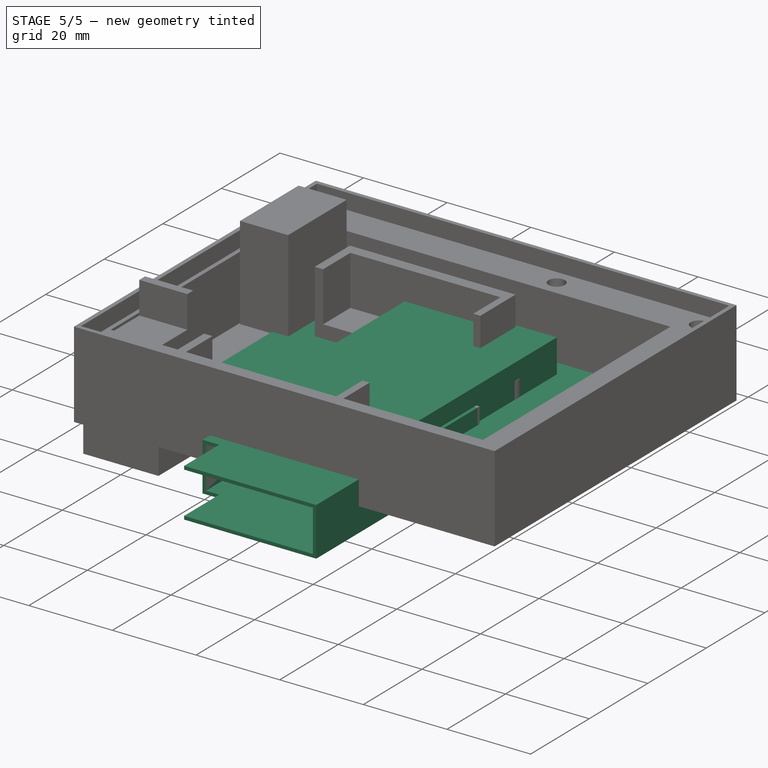
[diagram: stage 5 of 5 — iso view after this stage's code; geometry added in this stage tinted green]
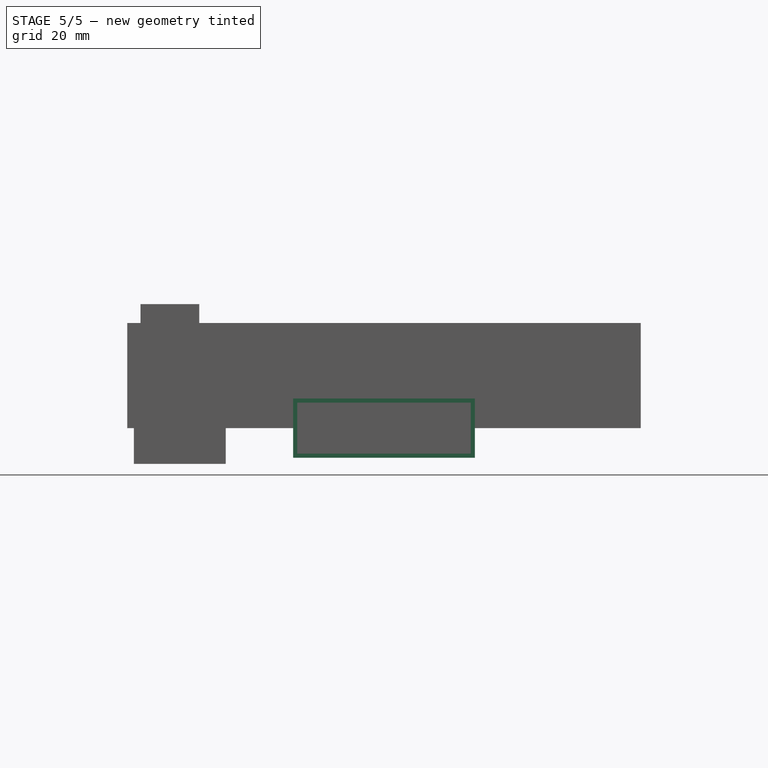
[diagram: stage 5 of 5 — front view after this stage's code; geometry added in this stage tinted green]
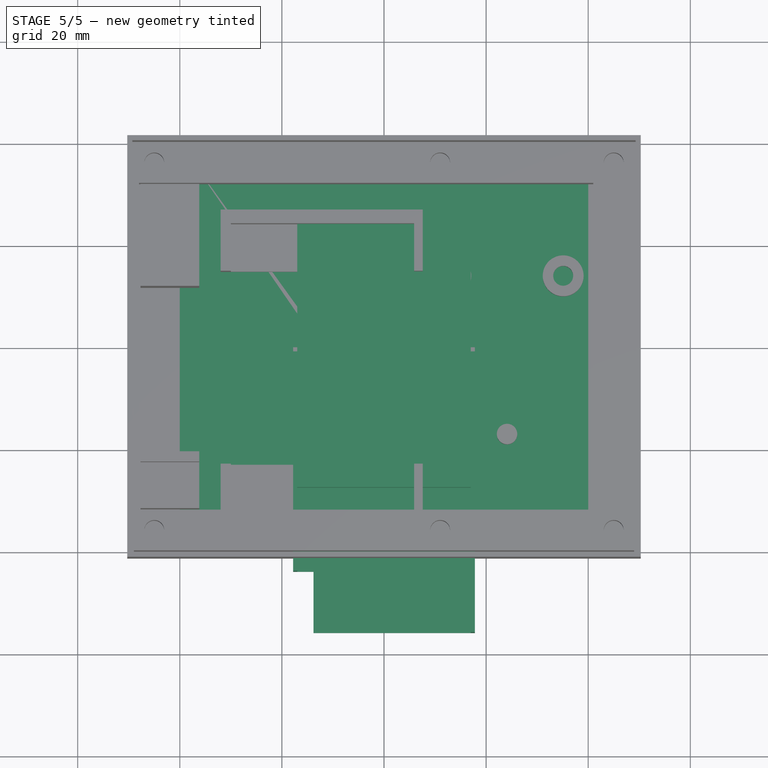
[diagram: stage 5 of 5 — top view after this stage's code; geometry added in this stage tinted green]
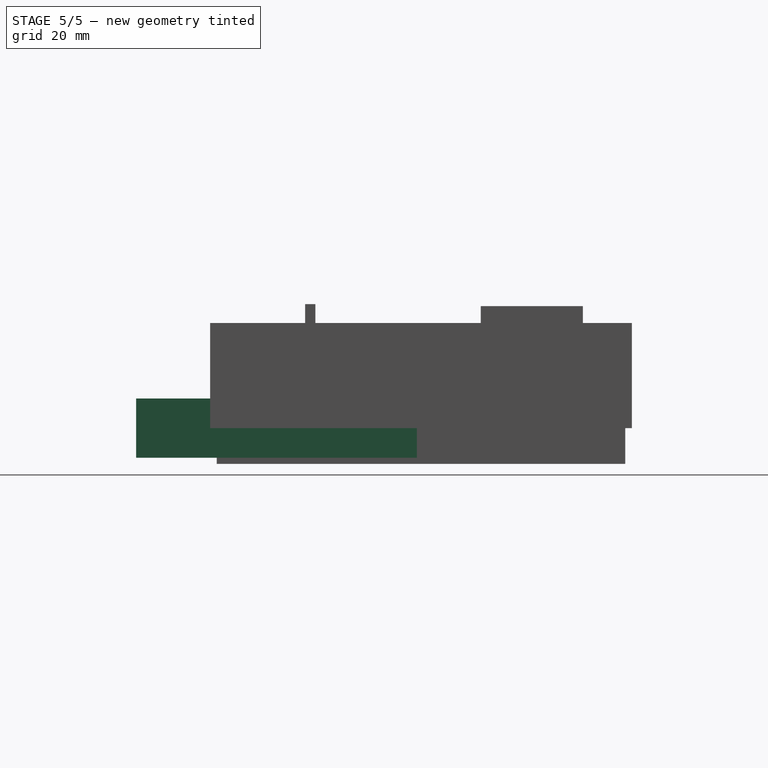
[diagram: stage 5 of 5 — right view after this stage's code; geometry added in this stage tinted green]
FEATURE [Sketcher::SketchObject] Sketch002  label="SolarPanel-PanelSketch"
  ArcFitTolerance = 0
  AttachmentSupport = -> [XY_Plane001]
  FullyConstrained = true
  MakeInternals = false
  MapMode = 5
  expr: Constraints[8] = <<RAKSheet>>.SolarPanelLength
  expr: Constraints[9] = <<RAKSheet>>.SolarPanelWidth
  sketch-geometry (4):
    g0: LineSegment StartX=-40 StartY=40 StartZ=0 EndX=40 EndY=40 EndZ=0
    g1: LineSegment StartX=40 StartY=40 StartZ=0 EndX=40 EndY=-40 EndZ=0
    g2: LineSegment StartX=40 StartY=-40 StartZ=0 EndX=-40 EndY=-40 EndZ=0
    g3: LineSegment StartX=-40 StartY=-40 StartZ=0 EndX=-40 EndY=40 EndZ=0
  constraints (11):
    c: Coincident(g0,g1)
    c: Coincident(g1,g2)
    c: Coincident(g2,g3)
    c: Coincident(g3,g0)
    c: Horizontal(g0)
    c: Horizontal(g2)
    c: Vertical(g1)
    c: Vertical(g3)
    c: DistanceX(g0,g0) = 80
    c: DistanceY(g3,g3) = 80
    c: Symmetric(g0,g1,g-1)
FEATURE [PartDesign::Pad] Pad001  label="SolarPanel-Panel"
  Direction = (0,0,1)
  Length = 2
  Length2 = 10
  Profile = -> Sketch002
  ReferenceAxis = -> Sketch002 [N_Axis]
  Suppressed = false
  Type = 0
  expr: Length = <<RAKSheet>>.SolarPanelHeight
FEATURE [Sketcher::SketchObject] Sketch003  label="SolarPanel-ContactsSketch"
  ArcFitTolerance = 0
  AttachmentSupport = -> [XY_Plane001]
  FullyConstrained = true
  MakeInternals = false
  MapMode = 5
  expr: Constraints[4] = 20 mm
  sketch-geometry (2):
    g0: Circle CenterX=-10 CenterY=0 CenterZ=0 NormalX=0 NormalY=0 NormalZ=1 AngleXU=0 Radius=4
    g1: Circle CenterX=10 CenterY=0 CenterZ=0 NormalX=0 NormalY=0 NormalZ=1 AngleXU=0 Radius=4
  constraints (5):
    c: PointOnObject(g0,g-1)
    c: Equal(g0,g1)
    c: Diameter(g0) = 8
    c: Symmetric(g0,g1,g-1)
    c: Distance(g1,g0) = 20
FEATURE [PartDesign::Pad] Pad002  label="SolarPanel-Contacts"
  BaseFeature = -> Pad001
  Direction = (0,0,1)
  Length = 4
  Length2 = 10
  Profile = -> Sketch003
  ReferenceAxis = -> Sketch003 [N_Axis]
  Suppressed = false
  Type = 0
  expr: Length = <<RAKSheet>>.SolarPanelHeight + 2 mm
FEATURE [Sketcher::SketchObject] Sketch005  label="Box-BatteryMountSketch"
  ArcFitTolerance = 0
  AttachmentSupport = -> [XY_Plane]
  FullyConstrained = true
  MakeInternals = false
  MapMode = 5
  expr: Constraints[13] = <<RAKSheet>>.BoxInternalWidth
  expr: Constraints[14] = <<RAKSheet>>.BoxInternalLength
  expr: Constraints[15] = <<RAKSheet>>.BatMount3rdMountDist
  expr: Constraints[16] = <<RAKSheet>>.GPSLength + <<RAKSheet>>.BatMountDiaOuter / 2
  expr: Constraints[17] = <<RAKSheet>>.BatMount3rdMountDist / 3
  expr: Constraints[19] = <<RAKSheet>>.BoxLength / 2 - <<RAKSheet>>.BoxWallThickness
  expr: Constraints[25] = <<RAKSheet>>.BatMount3rdMountDist / 3
  expr: Constraints[2] = <<RAKSheet>>.BatMountDiaOuter
  expr: Constraints[35] = <<RAKSheet>>.BatMountDiaInner
  expr: Constraints[4] = <<RAKSheet>>.BatMountWidth
  expr: Constraints[5] = <<RAKSheet>>.BatMountWidth / 2
  sketch-geometry (14):
    g0: Circle CenterX=-29 CenterY=12.6667 CenterZ=0 NormalX=0 NormalY=0 NormalZ=1 AngleXU=0 Radius=3
    g1: Circle CenterX=11 CenterY=12.6667 CenterZ=0 NormalX=0 NormalY=0 NormalZ=1 AngleXU=0 Radius=3
    g2: Circle CenterX=-9 CenterY=-26 CenterZ=0 NormalX=0 NormalY=0 NormalZ=1 AngleXU=0 Radius=3
    g3: LineSegment [constr] StartX=41 StartY=32 StartZ=0 EndX=-48 EndY=32 EndZ=0
    g4: LineSegment [constr] StartX=-48 StartY=32 StartZ=0 EndX=-48 EndY=-32 EndZ=0
    g5: LineSegment [constr] StartX=-48 StartY=-32 StartZ=0 EndX=41 EndY=-32 EndZ=0
    g6: LineSegment [constr] StartX=41 StartY=-32 StartZ=0 EndX=41 EndY=32 EndZ=0
    g7: Circle CenterX=-29 CenterY=-6.66667 CenterZ=0 NormalX=0 NormalY=0 NormalZ=1 AngleXU=0 Radius=3
    g8: Circle CenterX=11 CenterY=-6.66667 CenterZ=0 NormalX=0 NormalY=0 NormalZ=1 AngleXU=0 Radius=3
    g9: Circle CenterX=-29 CenterY=12.6667 CenterZ=0 NormalX=0 NormalY=0 NormalZ=1 AngleXU=0 Radius=1.4
    g10: Circle CenterX=-29 CenterY=-6.66667 CenterZ=0 NormalX=0 NormalY=0 NormalZ=1 AngleXU=0 Radius=1.4
    g11: Circle CenterX=11 CenterY=-6.66667 CenterZ=0 NormalX=0 NormalY=0 NormalZ=1 AngleXU=0 Radius=1.4
    g12: Circle CenterX=11 CenterY=12.6667 CenterZ=0 NormalX=0 NormalY=0 NormalZ=1 AngleXU=0 Radius=1.4
    g13: Circle CenterX=-9 CenterY=-26 CenterZ=0 NormalX=0 NormalY=0 NormalZ=1 AngleXU=0 Radius=1.4
  constraints (36):
    c: Equal(g0,g1)
    c: Equal(g0,g2)
    c: Diameter(g0) = 6
    c: Horizontal(g0,g1)
    c: DistanceX(g0,g1) = 40
    c: DistanceX(g0,g2) = 20
    c: Coincident(g3,g4)
    c: Coincident(g4,g5)
    c: Coincident(g5,g6)
    c: Coincident(g6,g3)
    c: Horizontal(g3)
    c: Horizontal(g5)
    c: Vertical(g4)
    c: DistanceY(g6,g6) = 64
    c: DistanceX(g3,g3) = 89
    c: DistanceY(g2,g3) = 58
    c: DistanceX(g3,g0) = 19
    c: DistanceY(g0,g3) = 19.3333
    c: Symmetric(g3,g5,g-1)
    c: DistanceX(g-1,g5) = 41
    c: Equal(g1,g8)
    c: Equal(g8,g7)
    c: Vertical(g7,g0)
    c: Vertical(g8,g1)
    c: Horizontal(g8,g7)
    c: DistanceY(g7,g0) = 19.3333
    c: Coincident(g9,g0)
    c: Coincident(g10,g7)
    c: Coincident(g11,g8)
    c: Coincident(g12,g1)
    c: Coincident(g13,g2)
    c: Equal(g12,g11)
    c: Equal(g12,g13)
    c: Equal(g12,g10)
    c: Equal(g12,g9)
    c: Diameter(g12) = 2.8
FEATURE [Sketcher::SketchObject] Sketch006
  ArcFitTolerance = 0
  AttachmentSupport = -> [XY_Plane002]
  FullyConstrained = true
  MakeInternals = false
  MapMode = 5
  expr: Constraints[8] = <<RAKSheet>>.BatWidth
  expr: Constraints[9] = <<RAKSheet>>.BatLength
  sketch-geometry (4):
    g0: LineSegment StartX=-17 StartY=27.5 StartZ=0 EndX=17 EndY=27.5 EndZ=0
    g1: LineSegment StartX=17 StartY=27.5 StartZ=0 EndX=17 EndY=-27.5 EndZ=0
    g2: LineSegment StartX=17 StartY=-27.5 StartZ=0 EndX=-17 EndY=-27.5 EndZ=0
    g3: LineSegment StartX=-17 StartY=-27.5 StartZ=0 EndX=-17 EndY=27.5 EndZ=0
  constraints (11):
    c: Coincident(g0,g1)
    c: Coincident(g1,g2)
    c: Coincident(g2,g3)
    c: Coincident(g3,g0)
    c: Horizontal(g0)
    c: Horizontal(g2)
    c: Vertical(g1)
    c: Vertical(g3)
    c: DistanceX(g0,g0) = 34
    c: DistanceY(g1,g1) = 55
    c: Symmetric(g0,g1,g-1)
FEATURE [PartDesign::Pad] Pad004  label="Battery"
  Direction = (0,0,1)
  Length = 10
  Length2 = 10
  Profile = -> Sketch006
  ReferenceAxis = -> Sketch006 [N_Axis]
  Suppressed = false
  Type = 0
  expr: Length = <<RAKSheet>>.BatHeight
FEATURE [Sketcher::SketchObject] Sketch016  label="BatteryBox-WallSketch"
  ArcFitTolerance = 0
  AttachmentSupport = -> [XZ_Plane068]
  FullyConstrained = true
  MakeInternals = false
  MapMode = 5
  Placement = pos=(0,0,0) rot=(1,0,0;1.5708rad)
  expr: Constraints[28] = <<RAKSheet>>.BatBoxWallThickness
  expr: Constraints[30] = <<RAKSheet>>.BatBoxWidth
  expr: Constraints[31] = <<RAKSheet>>.BatBoxHeight
  sketch-geometry (12):
    g0: LineSegment StartX=-17.8 StartY=5.8 StartZ=0 EndX=17.8 EndY=5.8 EndZ=0
    g1: LineSegment StartX=17.8 StartY=5.8 StartZ=0 EndX=17.8 EndY=-5.8 EndZ=0
    g2: LineSegment StartX=17.8 StartY=-5.8 StartZ=0 EndX=-17.8 EndY=-5.8 EndZ=0
    g3: LineSegment StartX=-17.8 StartY=-5.8 StartZ=0 EndX=-17.8 EndY=5.8 EndZ=0
    g4: LineSegment StartX=-17 StartY=5 StartZ=0 EndX=17 EndY=5 EndZ=0
    g5: LineSegment StartX=17 StartY=5 StartZ=0 EndX=17 EndY=-5 EndZ=0
    g6: LineSegment StartX=17 StartY=-5 StartZ=0 EndX=-17 EndY=-5 EndZ=0
    g7: LineSegment StartX=-17 StartY=-5 StartZ=0 EndX=-17 EndY=5 EndZ=0
    g8: LineSegment [constr] StartX=-17.8 StartY=5.8 StartZ=0 EndX=-17 EndY=5.8 EndZ=0
    g9: LineSegment [constr] StartX=-17 StartY=5.8 StartZ=0 EndX=-17 EndY=5 EndZ=0
    g10: LineSegment [constr] StartX=-17 StartY=5 StartZ=0 EndX=-17.8 EndY=5 EndZ=0
    g11: LineSegment [constr] StartX=-17.8 StartY=5 StartZ=0 EndX=-17.8 EndY=5.8 EndZ=0
  constraints (32):
    c: Coincident(g0,g1)
    c: Coincident(g1,g2)
    c: Coincident(g2,g3)
    c: Coincident(g3,g0)
    c: Horizontal(g0)
    c: Horizontal(g2)
    c: Vertical(g1)
    c: Vertical(g3)
    c: Coincident(g4,g5)
    c: Coincident(g5,g6)
    c: Coincident(g6,g7)
    c: Coincident(g7,g4)
    c: Horizontal(g4)
    c: Horizontal(g6)
    c: Vertical(g5)
    c: Vertical(g7)
    c: Symmetric(g4,g6,g-1)
    c: Symmetric(g0,g1,g-1)
    c: Coincident(g8,g9)
    c: Coincident(g9,g10)
    c: Coincident(g10,g11)
    c: Coincident(g11,g8)
    c: Horizontal(g8)
    c: Horizontal(g10)
    c: Vertical(g9)
    c: Vertical(g11)
    c: Coincident(g8,g0)
    c: Coincident(g9,g4)
    c: DistanceY(g9,g9) = 0.8
    c: Equal(g9,g10)
    c: DistanceX(g0,g0) = 35.6
    c: DistanceY(g3,g3) = 11.6
FEATURE [PartDesign::Pad] Pad011  label="BatteryBox-Wall"
  BaseFeature = -> Pad010
  Direction = (0,-1,2e-16)
  Length = 55.8
  Length2 = 10
  Placement = pos=(0,0,0) rot=(1,0,0;1.5708rad)
  Profile = -> Sketch016
  ReferenceAxis = -> Sketch016 [N_Axis]
  Suppressed = false
  Type = 0
  expr: Length = <<RAKSheet>>.BatBoxLength
FEATURE [Sketcher::SketchObject] Sketch017  label="BatteryBox-WireGapSketch"
  ArcFitTolerance = 0
  AttachmentSupport = -> [XY_Plane068]
  FullyConstrained = true
  MakeInternals = false
  MapMode = 5
  expr: Constraints[19] = <<RAKSheet>>.BatBoxLength
  expr: Constraints[20] = <<RAKSheet>>.BatBoxWidth
  expr: Constraints[8] = <<RAKSheet>>.BatBoxWireGapLength
  expr: Constraints[9] = <<RAKSheet>>.BatBoxWireGapWidth
  sketch-geometry (8):
    g0: LineSegment StartX=-17.8 StartY=-43.8 StartZ=0 EndX=-13.8 EndY=-43.8 EndZ=0
    g1: LineSegment StartX=-13.8 StartY=-43.8 StartZ=0 EndX=-13.8 EndY=-55.8 EndZ=0
    g2: LineSegment StartX=-13.8 StartY=-55.8 StartZ=0 EndX=-17.8 EndY=-55.8 EndZ=0
    g3: LineSegment StartX=-17.8 StartY=-55.8 StartZ=0 EndX=-17.8 EndY=-43.8 EndZ=0
    g4: LineSegment [constr] StartX=-17.8 StartY=0 StartZ=0 EndX=17.8 EndY=-2.6965e-12 EndZ=0
    g5: LineSegment [constr] StartX=17.8 StartY=-2.6965e-12 StartZ=0 EndX=17.8 EndY=-55.8 EndZ=0
    g6: LineSegment [constr] StartX=17.8 StartY=-55.8 StartZ=0 EndX=-17.8 EndY=-55.8 EndZ=0
    g7: LineSegment [constr] StartX=-17.8 StartY=-55.8 StartZ=0 EndX=-17.8 EndY=0 EndZ=0
  constraints (22):
    c: Coincident(g0,g1)
    c: Coincident(g1,g2)
    c: Coincident(g2,g3)
    c: Coincident(g3,g0)
    c: Horizontal(g0)
    c: Horizontal(g2)
    c: Vertical(g1)
    c: Vertical(g3)
    c: DistanceY(g3,g3) = 12
    c: DistanceX(g2,g2) = 4
    c: Coincident(g4,g5)
    c: Coincident(g5,g6)
    c: Coincident(g6,g7)
    c: Coincident(g7,g4)
    c: Horizontal(g6)
    c: Vertical(g5)
    c: Vertical(g7)
    c: PointOnObject(g4,g-1)
    c: Symmetric(g4,g4,g-1)
    c: DistanceY(g7,g7) = 55.8
    c: DistanceX(g4,g4) = 35.6
    c: Coincident(g2,g6)
FEATURE [PartDesign::Pocket] Pocket005  label="BatteryBox-WireGap"
  BaseFeature = -> Pad011
  Direction = (0,0,-1)
  Length = 11.6
  Length2 = 5
  Midplane = true
  Placement = pos=(0,0,0) rot=(1,0,0;1.5708rad)
  Profile = -> Sketch017
  ReferenceAxis = -> Sketch017 [N_Axis]
  Suppressed = false
  Type = 0
  expr: Length = <<RAKSheet>>.BatBoxHeight
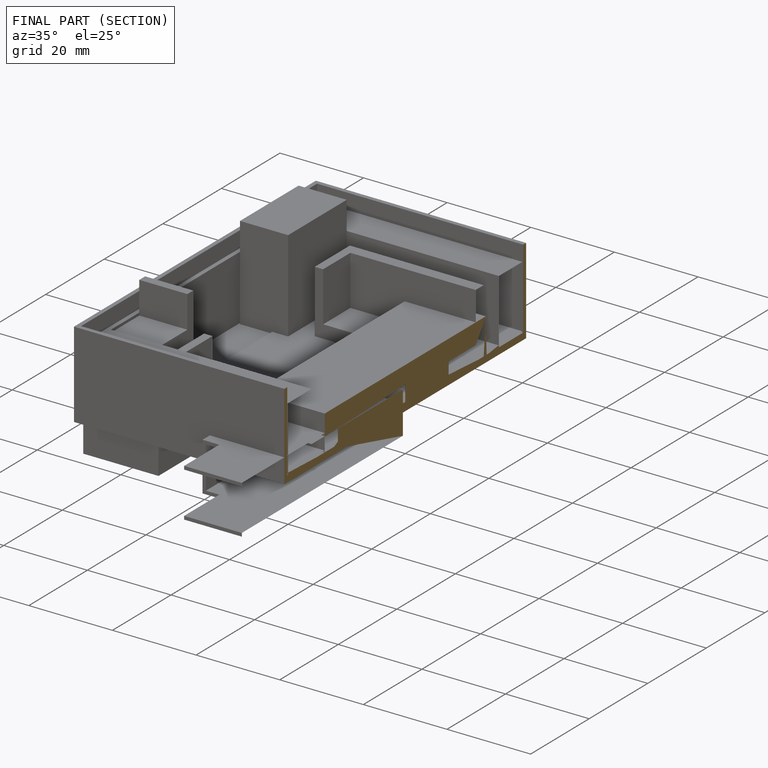
[diagram: finished part — half-section view (interior)]
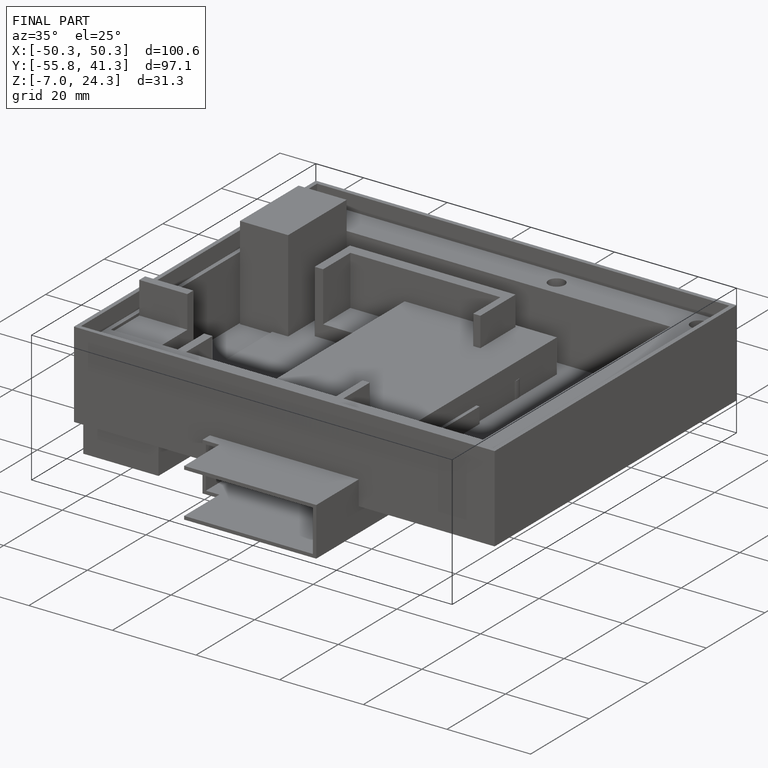
[diagram: finished part — iso view with bounding-box wireframe]
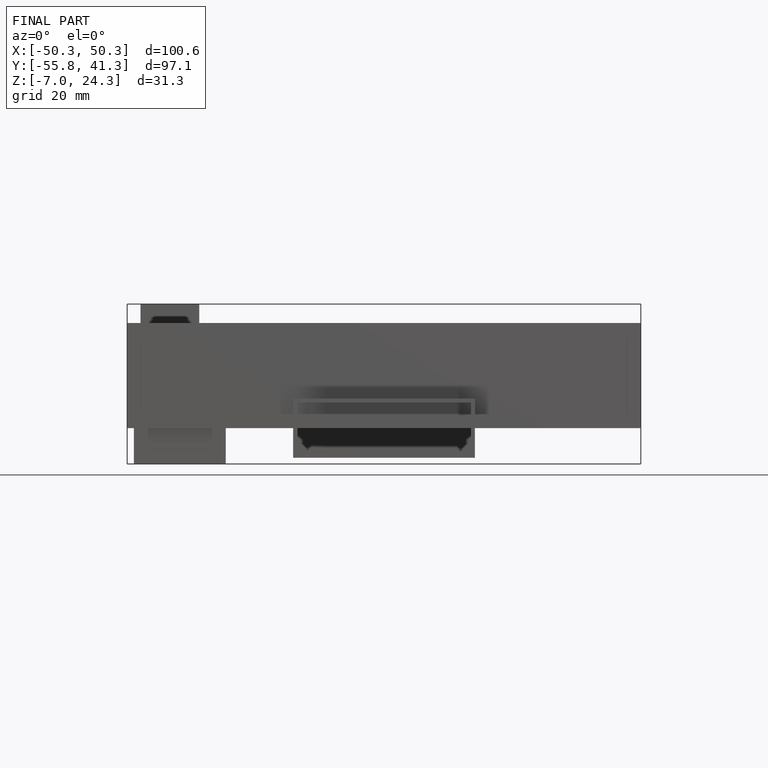
[diagram: finished part — front view with bounding-box wireframe]
